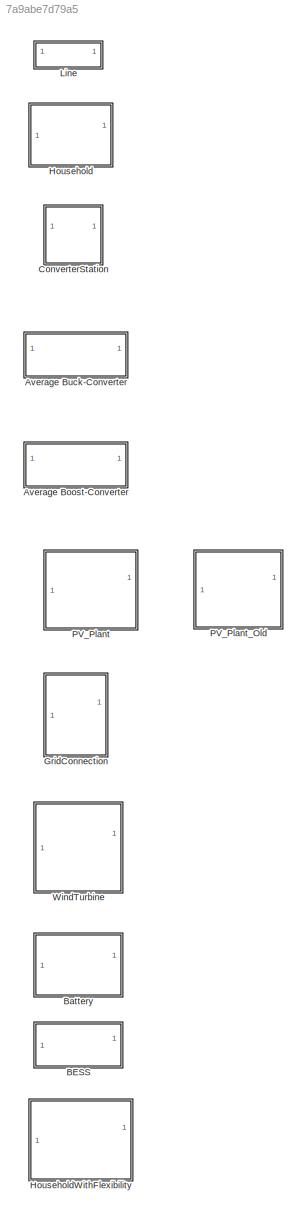
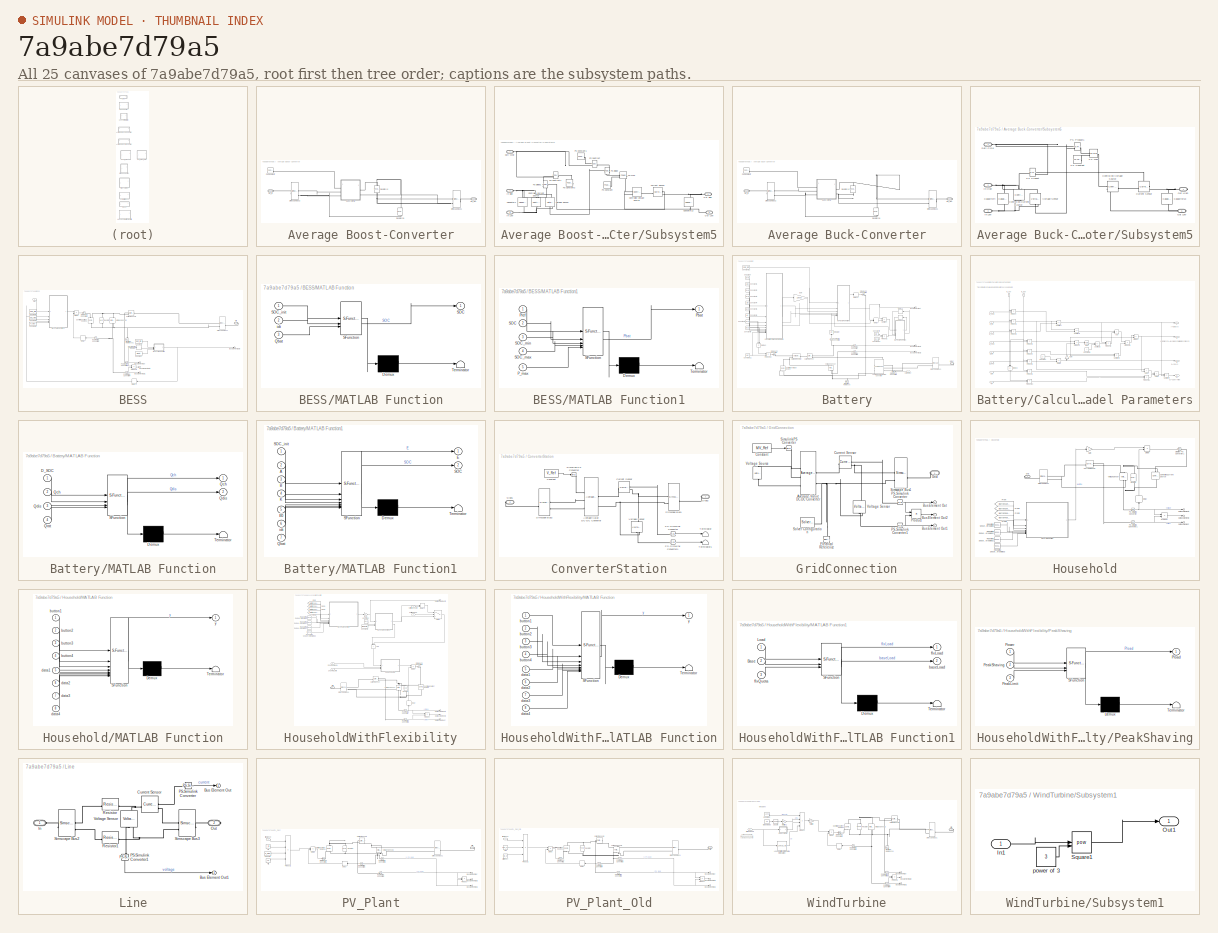
[diagram: thumbnail index - all 25 canvases of the model, root first then tree order]
MODEL slx_7a9abe7d79a5
KIND library
CONFIG AbsTol = auto
CONFIG EnableMultiTasking = off
CONFIG FixedStep = auto
CONFIG MaxStep = auto
CONFIG MinStep = auto
CONFIG RelTol = 1e-3
CONFIG SampleTimeConstraint = Unconstrained
CONFIG SolverName = VariableStepAuto
CONFIG StartTime = 0.0
CONFIG StopTime = 10.0
BLOCK [SubSystem] Average Boost-Converter
BLOCK [PMIOPort] Average Boost-Converter/DC_In
  Side = Left
BLOCK [PMIOPort] Average Boost-Converter/DC_Out
  Port = 2
  Side = Right
BLOCK [Reference] Average Boost-Converter/PS Constant7  REF=fl_lib/Physical Signals/Sources/PS Constant
  SourceBlock = fl_lib/Physical Signals/Sources/PS Constant
  SourceType = PS Constant
BLOCK [Reference] Average Boost-Converter/Resistor12  REF=fl_lib/Electrical/Electrical Elements/Resistor
  NameLocation = left
  SourceBlock = fl_lib/Electrical/Electrical Elements/Resistor
  SourceType = Resistor
BLOCK [Reference] Average Boost-Converter/Resistor39  REF=fl_lib/Electrical/Electrical Elements/Resistor
  NameLocation = right
  SourceBlock = fl_lib/Electrical/Electrical Elements/Resistor
  SourceType = Resistor
BLOCK [SimscapeBus] Average Boost-Converter/Simscape Bus1
  HierarchyStrings = High;Low
BLOCK [SimscapeBus] Average Boost-Converter/Simscape Bus2
  HierarchyStrings = High;Low
  NameLocation = top
BLOCK [SubSystem] Average Boost-Converter/Subsystem5
BLOCK [Reference] Average Boost-Converter/Subsystem5/Capacitor12  REF=fl_lib/Electrical/Electrical Elements/Capacitor
  NameLocation = left
  SourceBlock = fl_lib/Electrical/Electrical Elements/Capacitor
  SourceType = Capacitor
BLOCK [Reference] Average Boost-Converter/Subsystem5/Capacitor4  REF=fl_lib/Electrical/Electrical Elements/Capacitor
  NameLocation = left
  SourceBlock = fl_lib/Electrical/Electrical Elements/Capacitor
  SourceType = Capacitor
BLOCK [Reference] Average Boost-Converter/Subsystem5/Controlled Current Source  REF=fl_lib/Electrical/Electrical Sources/Controlled Current
Source
  NameLocation = left
  SourceBlock = fl_lib/Electrical/Electrical Sources/Controlled Current\nSource
  SourceType = Controlled Current\nSource
BLOCK [Reference] Average Boost-Converter/Subsystem5/Controlled Voltage Source  REF=fl_lib/Electrical/Electrical Sources/Controlled Voltage
Source
  SourceBlock = fl_lib/Electrical/Electrical Sources/Controlled Voltage\nSource
  SourceType = Controlled Voltage\nSource
BLOCK [Reference] Average Boost-Converter/Subsystem5/Current Sensor  REF=fl_lib/Electrical/Electrical Sensors/Current Sensor
  SourceBlock = fl_lib/Electrical/Electrical Sensors/Current Sensor
  SourceType = Current Sensor
BLOCK [PMIOPort] Average Boost-Converter/Subsystem5/Duty Cycle
  Side = Left
BLOCK [PMIOPort] Average Boost-Converter/Subsystem5/In High
  Port = 2
  Side = Left
BLOCK [PMIOPort] Average Boost-Converter/Subsystem5/In Low
  Port = 3
  Side = Left
BLOCK [PMIOPort] Average Boost-Converter/Subsystem5/Out High
  NameLocation = top
  Port = 4
  Side = Right
BLOCK [PMIOPort] Average Boost-Converter/Subsystem5/Out Low
  NameLocation = top
  Port = 5
  Side = Right
BLOCK [Reference] Average Boost-Converter/Subsystem5/PS Constant  REF=fl_lib/Physical Signals/Sources/PS Constant
  SourceBlock = fl_lib/Physical Signals/Sources/PS Constant
  SourceType = PS Constant
BLOCK [Reference] Average Boost-Converter/Subsystem5/PS Constant1  REF=fl_lib/Physical Signals/Sources/PS Constant
  SourceBlock = fl_lib/Physical Signals/Sources/PS Constant
  SourceType = PS Constant
BLOCK [Reference] Average Boost-Converter/Subsystem5/PS Constant2  REF=fl_lib/Physical Signals/Sources/PS Constant
  NameLocation = top
  SourceBlock = fl_lib/Physical Signals/Sources/PS Constant
  SourceType = PS Constant
BLOCK [Reference] Average Boost-Converter/Subsystem5/PS Divide  REF=fl_lib/Physical Signals/Functions/PS Divide
  SourceBlock = fl_lib/Physical Signals/Functions/PS Divide
  SourceType = PS Divide
BLOCK [Reference] Average Boost-Converter/Subsystem5/PS Divide1  REF=fl_lib/Physical Signals/Functions/PS Divide
  NameLocation = top
  SourceBlock = fl_lib/Physical Signals/Functions/PS Divide
  SourceType = PS Divide
BLOCK [Reference] Average Boost-Converter/Subsystem5/PS Max  REF=fl_lib/Physical Signals/Nonlinear Operators/PS Max
  SourceBlock = fl_lib/Physical Signals/Nonlinear Operators/PS Max
  SourceType = PS Max
BLOCK [Reference] Average Boost-Converter/Subsystem5/PS Subtract  REF=fl_lib/Physical Signals/Functions/PS Subtract
  SourceBlock = fl_lib/Physical Signals/Functions/PS Subtract
  SourceType = PS Subtract
BLOCK [Reference] Average Boost-Converter/Subsystem5/PS Subtract1  REF=fl_lib/Physical Signals/Functions/PS Subtract
  NameLocation = top
  SourceBlock = fl_lib/Physical Signals/Functions/PS Subtract
  SourceType = PS Subtract
BLOCK [Reference] Average Boost-Converter/Subsystem5/Voltage Sensor  REF=fl_lib/Electrical/Electrical Sensors/Voltage Sensor
  NameLocation = right
  SourceBlock = fl_lib/Electrical/Electrical Sensors/Voltage Sensor
  SourceType = Voltage Sensor
BLOCK [SubSystem] Average Buck-Converter
BLOCK [PMIOPort] Average Buck-Converter/DC_In
  Side = Left
BLOCK [PMIOPort] Average Buck-Converter/DC_Out
  Port = 2
  Side = Right
BLOCK [Reference] Average Buck-Converter/PS Constant7  REF=fl_lib/Physical Signals/Sources/PS Constant
  SourceBlock = fl_lib/Physical Signals/Sources/PS Constant
  SourceType = PS Constant
BLOCK [Reference] Average Buck-Converter/Resistor12  REF=fl_lib/Electrical/Electrical Elements/Resistor
  NameLocation = left
  SourceBlock = fl_lib/Electrical/Electrical Elements/Resistor
  SourceType = Resistor
BLOCK [Reference] Average Buck-Converter/Resistor39  REF=fl_lib/Electrical/Electrical Elements/Resistor
  NameLocation = right
  SourceBlock = fl_lib/Electrical/Electrical Elements/Resistor
  SourceType = Resistor
BLOCK [SimscapeBus] Average Buck-Converter/Simscape Bus1
  HierarchyStrings = High;Low
BLOCK [SimscapeBus] Average Buck-Converter/Simscape Bus2
  HierarchyStrings = High;Low
  NameLocation = top
BLOCK [SubSystem] Average Buck-Converter/Subsystem5
BLOCK [Reference] Average Buck-Converter/Subsystem5/Capacitor13  REF=fl_lib/Electrical/Electrical Elements/Capacitor
  NameLocation = left
  SourceBlock = fl_lib/Electrical/Electrical Elements/Capacitor
  SourceType = Capacitor
BLOCK [Reference] Average Buck-Converter/Subsystem5/Capacitor4  REF=fl_lib/Electrical/Electrical Elements/Capacitor
  NameLocation = left
  SourceBlock = fl_lib/Electrical/Electrical Elements/Capacitor
  SourceType = Capacitor
BLOCK [Reference] Average Buck-Converter/Subsystem5/Controlled Current Source  REF=fl_lib/Electrical/Electrical Sources/Controlled Current
Source
  NameLocation = left
  SourceBlock = fl_lib/Electrical/Electrical Sources/Controlled Current\nSource
  SourceType = Controlled Current\nSource
BLOCK [Reference] Average Buck-Converter/Subsystem5/Controlled Voltage Source  REF=fl_lib/Electrical/Electrical Sources/Controlled Voltage
Source
  SourceBlock = fl_lib/Electrical/Electrical Sources/Controlled Voltage\nSource
  SourceType = Controlled Voltage\nSource
BLOCK [Reference] Average Buck-Converter/Subsystem5/Current Sensor  REF=fl_lib/Electrical/Electrical Sensors/Current Sensor
  SourceBlock = fl_lib/Electrical/Electrical Sensors/Current Sensor
  SourceType = Current Sensor
BLOCK [PMIOPort] Average Buck-Converter/Subsystem5/Duty Cycle
  Side = Left
BLOCK [PMIOPort] Average Buck-Converter/Subsystem5/In High
  Port = 2
  Side = Left
BLOCK [PMIOPort] Average Buck-Converter/Subsystem5/In Low
  Port = 3
  Side = Left
BLOCK [PMIOPort] Average Buck-Converter/Subsystem5/Out High
  NameLocation = top
  Port = 4
  Side = Right
BLOCK [PMIOPort] Average Buck-Converter/Subsystem5/Out Low
  NameLocation = top
  Port = 5
  Side = Right
BLOCK [Reference] Average Buck-Converter/Subsystem5/PS Constant  REF=fl_lib/Physical Signals/Sources/PS Constant
  SourceBlock = fl_lib/Physical Signals/Sources/PS Constant
  SourceType = PS Constant
BLOCK [Reference] Average Buck-Converter/Subsystem5/PS Max  REF=fl_lib/Physical Signals/Nonlinear Operators/PS Max
  SourceBlock = fl_lib/Physical Signals/Nonlinear Operators/PS Max
  SourceType = PS Max
BLOCK [Reference] Average Buck-Converter/Subsystem5/PS Product  REF=fl_lib/Physical Signals/Functions/PS Product
  NameLocation = top
  SourceBlock = fl_lib/Physical Signals/Functions/PS Product
  SourceType = PS Product
BLOCK [Reference] Average Buck-Converter/Subsystem5/PS Product1  REF=fl_lib/Physical Signals/Functions/PS Product
  SourceBlock = fl_lib/Physical Signals/Functions/PS Product
  SourceType = PS Product
BLOCK [Reference] Average Buck-Converter/Subsystem5/Voltage Sensor  REF=fl_lib/Electrical/Electrical Sensors/Voltage Sensor
  NameLocation = right
  SourceBlock = fl_lib/Electrical/Electrical Sensors/Voltage Sensor
  SourceType = Voltage Sensor
BLOCK [SubSystem] BESS
BLOCK [Outport] BESS/Bus Element Out
BLOCK [Outport] BESS/Bus Element Out1
BLOCK [Outport] BESS/Bus Element Out2
BLOCK [Outport] BESS/Bus Element Out3
BLOCK [Constant] BESS/Constant
  Value = Qbat
BLOCK [Constant] BESS/Constant1
  Value = SOC_init
BLOCK [Constant] BESS/Constant2
  Value = SOC_min
BLOCK [Constant] BESS/Constant3
  Value = SOC_max
BLOCK [Constant] BESS/Constant4
  Value = P_max
BLOCK [Reference] BESS/Controlled Current Source1  REF=fl_lib/Electrical/Electrical Sources/Controlled Current
Source
  NameLocation = left
  SourceBlock = fl_lib/Electrical/Electrical Sources/Controlled Current\nSource
  SourceType = Controlled Current\nSource
BLOCK [Reference] BESS/Current Sensor1  REF=fl_lib/Electrical/Electrical Sensors/Current Sensor
  NameLocation = top
  SourceBlock = fl_lib/Electrical/Electrical Sensors/Current Sensor
  SourceType = Current Sensor
BLOCK [Delay] BESS/Delay
  DelayLength = 1
  InitialCondition = V_Bat
  InputPortMap = u0
  NameLocation = top
BLOCK [Delay] BESS/Delay1
  DelayLength = 1
  InitialCondition = SOC_init
  InputPortMap = u0
  NameLocation = top
BLOCK [DiscreteIntegrator] BESS/Discrete-Time Integrator
  ICPrevOutput = DiscIntNeverNeededParam
  ICPrevScaledInput = DiscIntNeverNeededParam
  InitialConditionSetting = Auto
  SampleTime = -1
BLOCK [Product] BESS/Divide
  Inputs = */
BLOCK [Reference] BESS/Electrical Reference1  REF=fl_lib/Electrical/Electrical Elements/Electrical Reference
  NameLocation = right
  SourceBlock = fl_lib/Electrical/Electrical Elements/Electrical Reference
  SourceType = Electrical Reference
BLOCK [PMIOPort] BESS/Grid
  Side = Right
BLOCK [SubSystem] BESS/MATLAB Function
  ErrorFcn = Stateflow.Translate.translate
  LibrarySourceBlock = simulink/User-Defined\nFunctions/MATLAB Function
  PermitHierarchicalResolution = ExplicitOnly
  SFBlockType = MATLAB Function
  TreatAsAtomicUnit = on
BLOCK [Demux] BESS/MATLAB Function/ Demux 
  Outputs = 1
BLOCK [S-Function] BESS/MATLAB Function/ SFunction 
  EnableBusSupport = off
  FunctionName = sf_sfun
  PortCounts = [3 2]
  SFcnIsStateOwnerBlock = off
  SFunctionDeploymentMode = off
  Tag = Stateflow S-Function 1
BLOCK [Terminator] BESS/MATLAB Function/ Terminator 
BLOCK [Inport] BESS/MATLAB Function/Qbat
  Port = 3
BLOCK [Outport] BESS/MATLAB Function/SOC
BLOCK [Inport] BESS/MATLAB Function/SOC_init
BLOCK [Inport] BESS/MATLAB Function/idt
  Port = 2
BLOCK [SubSystem] BESS/MATLAB Function1
  ErrorFcn = Stateflow.Translate.translate
  LibrarySourceBlock = simulink/User-Defined\nFunctions/MATLAB Function
  PermitHierarchicalResolution = ExplicitOnly
  SFBlockType = MATLAB Function
  TreatAsAtomicUnit = on
BLOCK [Demux] BESS/MATLAB Function1/ Demux 
  Outputs = 1
BLOCK [S-Function] BESS/MATLAB Function1/ SFunction 
  EnableBusSupport = off
  FunctionName = sf_sfun
  PortCounts = [5 2]
  SFcnIsStateOwnerBlock = off
  SFunctionDeploymentMode = off
  Tag = Stateflow S-Function 3
BLOCK [Terminator] BESS/MATLAB Function1/ Terminator 
BLOCK [Inport] BESS/MATLAB Function1/P_max
  Port = 5
BLOCK [Outport] BESS/MATLAB Function1/Pbat
BLOCK [Inport] BESS/MATLAB Function1/Pref
BLOCK [Inport] BESS/MATLAB Function1/SOC
  Port = 2
BLOCK [Inport] BESS/MATLAB Function1/SOC_max
  Port = 4
BLOCK [Inport] BESS/MATLAB Function1/SOC_min
  Port = 3
BLOCK [Reference] BESS/PS-Simulink Converter2  REF=nesl_utility/PS-Simulink
Converter
  NameLocation = top
  SourceBlock = nesl_utility/PS-Simulink\nConverter
  SourceType = PS-Simulink\nConverter
BLOCK [Reference] BESS/PS-Simulink Converter3  REF=nesl_utility/PS-Simulink
Converter
  SourceBlock = nesl_utility/PS-Simulink\nConverter
  SourceType = PS-Simulink\nConverter
BLOCK [Reference] BESS/PS-Simulink Converter4  REF=nesl_utility/PS-Simulink
Converter
  SourceBlock = nesl_utility/PS-Simulink\nConverter
  SourceType = PS-Simulink\nConverter
BLOCK [Inport] BESS/Pref
BLOCK [Product] BESS/Product1
BLOCK [Reference] BESS/Resistor  REF=fl_lib/Electrical/Electrical Elements/Resistor
  NameLocation = left
  SourceBlock = fl_lib/Electrical/Electrical Elements/Resistor
  SourceType = Resistor
BLOCK [SimscapeBus] BESS/Simscape Bus1
  HierarchyStrings = High;Low
BLOCK [Reference] BESS/Simulink-PS Converter1  REF=nesl_utility/Simulink-PS
Converter
  SourceBlock = nesl_utility/Simulink-PS\nConverter
  SourceType = Simulink-PS\nConverter
BLOCK [Reference] BESS/Voltage Sensor1  REF=fl_lib/Electrical/Electrical Sensors/Voltage Sensor
  NameLocation = right
  SourceBlock = fl_lib/Electrical/Electrical Sensors/Voltage Sensor
  SourceType = Voltage Sensor
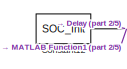
[diagram: Battery - part 1/5, top left region]
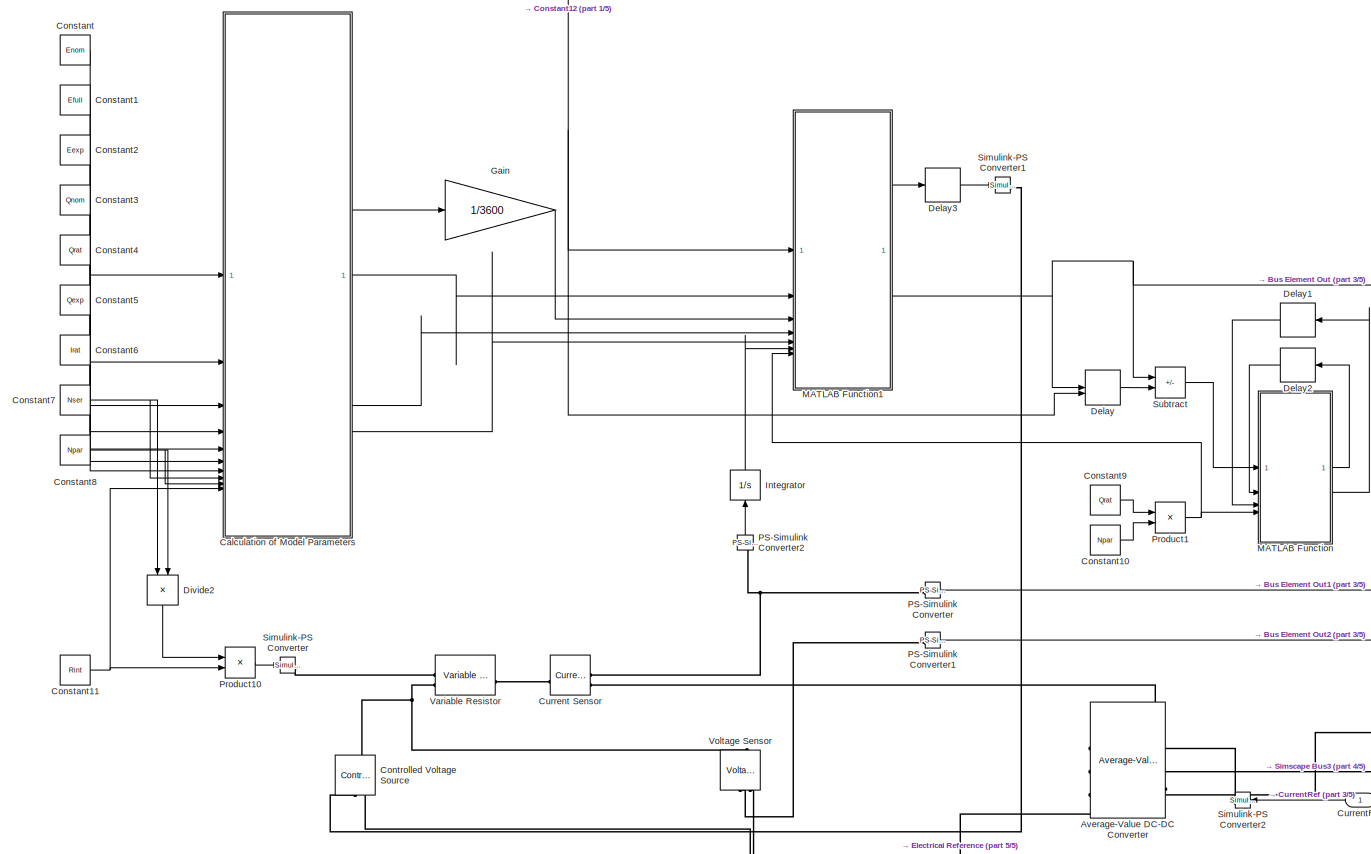
[diagram: Battery - part 2/5, most of the canvas]
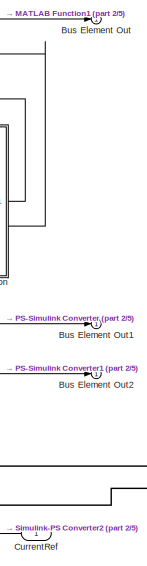
[diagram: Battery - part 3/5, middle right region]
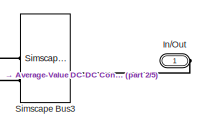
[diagram: Battery - part 4/5, bottom right region]
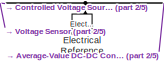
[diagram: Battery - part 5/5, bottom center region]
BLOCK [SubSystem] Battery
  Commented = on
BLOCK [Reference] Battery/Average-Value DC-DC Converter  REF=ee_lib/Semiconductors &
Converters/Converters/Average-Value DC-DC
Converter
  NameLocation = top
  SourceBlock = ee_lib/Semiconductors &\nConverters/Converters/Average-Value DC-DC\nConverter
  SourceType = Average-Value DC-DC\nConverter
BLOCK [Outport] Battery/Bus Element Out
BLOCK [Outport] Battery/Bus Element Out1
BLOCK [Outport] Battery/Bus Element Out2
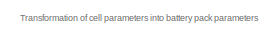
[diagram: Battery/Calculation of Model Parameters - part 1/2, top left region]
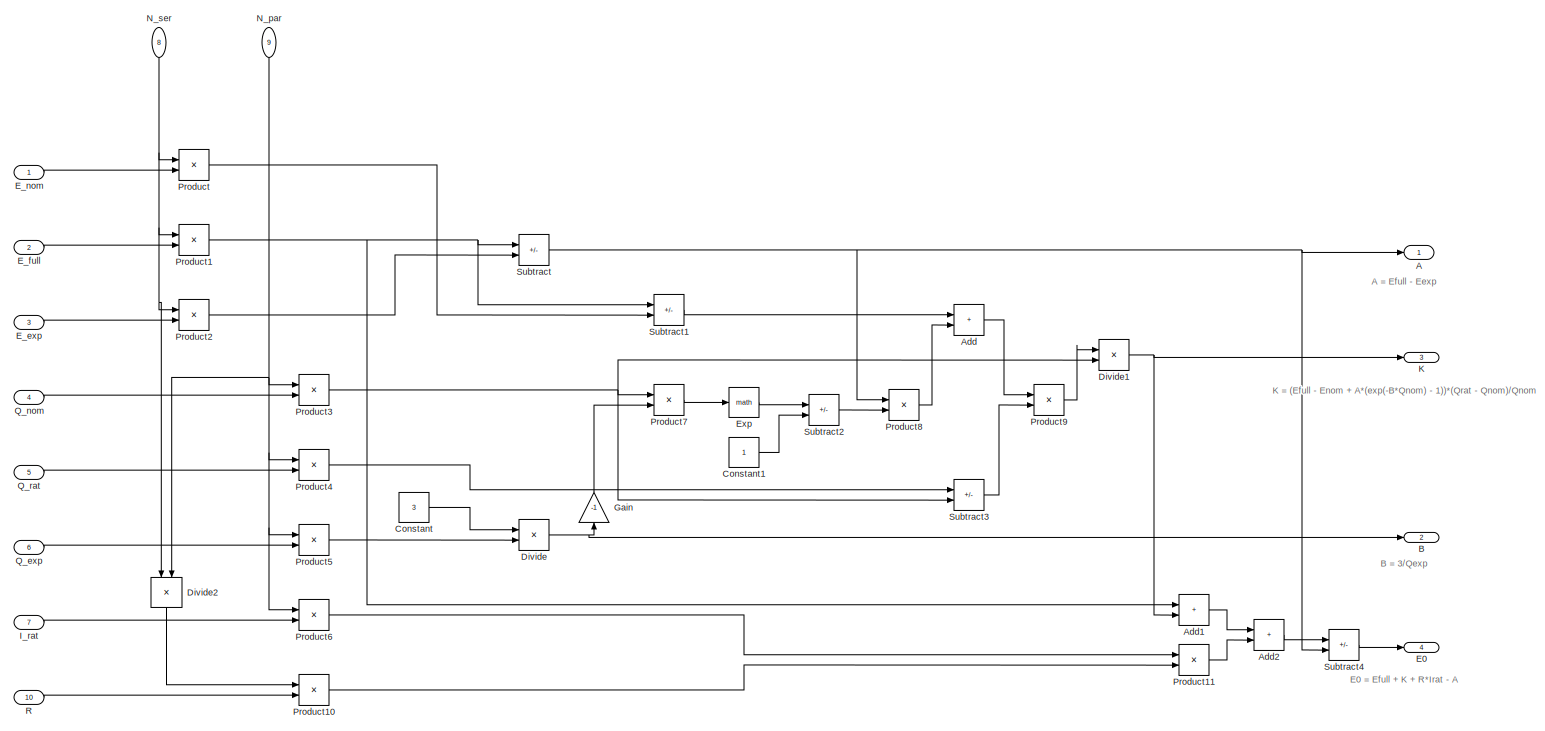
[diagram: Battery/Calculation of Model Parameters - part 2/2, most of the canvas]
BLOCK [SubSystem] Battery/Calculation of Model Parameters
BLOCK [Outport] Battery/Calculation of Model Parameters/A
BLOCK [Sum] Battery/Calculation of Model Parameters/Add
  IconShape = rectangular
BLOCK [Sum] Battery/Calculation of Model Parameters/Add1
  IconShape = rectangular
BLOCK [Sum] Battery/Calculation of Model Parameters/Add2
  IconShape = rectangular
BLOCK [Outport] Battery/Calculation of Model Parameters/B
  Port = 2
BLOCK [Constant] Battery/Calculation of Model Parameters/Constant
  Value = 3
BLOCK [Constant] Battery/Calculation of Model Parameters/Constant1
BLOCK [Product] Battery/Calculation of Model Parameters/Divide
  Inputs = */
BLOCK [Product] Battery/Calculation of Model Parameters/Divide1
  Inputs = */
BLOCK [Product] Battery/Calculation of Model Parameters/Divide2
  Inputs = */
  NameLocation = left
BLOCK [Outport] Battery/Calculation of Model Parameters/E0
  Port = 4
BLOCK [Inport] Battery/Calculation of Model Parameters/E_exp
  Port = 3
BLOCK [Inport] Battery/Calculation of Model Parameters/E_full
  Port = 2
BLOCK [Inport] Battery/Calculation of Model Parameters/E_nom
BLOCK [Math] Battery/Calculation of Model Parameters/Exp
BLOCK [Gain] Battery/Calculation of Model Parameters/Gain
  Gain = -1
  NameLocation = right
BLOCK [Inport] Battery/Calculation of Model Parameters/I_rat
  Port = 7
BLOCK [Outport] Battery/Calculation of Model Parameters/K
  Port = 3
BLOCK [Inport] Battery/Calculation of Model Parameters/N_par
  NameLocation = left
  Port = 9
BLOCK [Inport] Battery/Calculation of Model Parameters/N_ser
  NameLocation = left
  Port = 8
BLOCK [Product] Battery/Calculation of Model Parameters/Product
BLOCK [Product] Battery/Calculation of Model Parameters/Product1
BLOCK [Product] Battery/Calculation of Model Parameters/Product10
BLOCK [Product] Battery/Calculation of Model Parameters/Product11
BLOCK [Product] Battery/Calculation of Model Parameters/Product2
BLOCK [Product] Battery/Calculation of Model Parameters/Product3
BLOCK [Product] Battery/Calculation of Model Parameters/Product4
BLOCK [Product] Battery/Calculation of Model Parameters/Product5
BLOCK [Product] Battery/Calculation of Model Parameters/Product6
BLOCK [Product] Battery/Calculation of Model Parameters/Product7
BLOCK [Product] Battery/Calculation of Model Parameters/Product8
BLOCK [Product] Battery/Calculation of Model Parameters/Product9
BLOCK [Inport] Battery/Calculation of Model Parameters/Q_exp
  Port = 6
BLOCK [Inport] Battery/Calculation of Model Parameters/Q_nom
  Port = 4
BLOCK [Inport] Battery/Calculation of Model Parameters/Q_rat
  Port = 5
BLOCK [Inport] Battery/Calculation of Model Parameters/R
  Port = 10
BLOCK [Sum] Battery/Calculation of Model Parameters/Subtract
  IconShape = rectangular
  Inputs = +-
BLOCK [Sum] Battery/Calculation of Model Parameters/Subtract1
  IconShape = rectangular
  Inputs = +-
BLOCK [Sum] Battery/Calculation of Model Parameters/Subtract2
  IconShape = rectangular
  Inputs = +-
BLOCK [Sum] Battery/Calculation of Model Parameters/Subtract3
  IconShape = rectangular
  Inputs = +-
BLOCK [Sum] Battery/Calculation of Model Parameters/Subtract4
  IconShape = rectangular
  Inputs = +-
BLOCK [Constant] Battery/Constant
  Value = Enom
BLOCK [Constant] Battery/Constant1
  Value = Efull
BLOCK [Constant] Battery/Constant10
  Value = Npar
BLOCK [Constant] Battery/Constant11
  Value = Rint
BLOCK [Constant] Battery/Constant12
  Value = SOC_Init
BLOCK [Constant] Battery/Constant2
  Value = Eexp
BLOCK [Constant] Battery/Constant3
  Value = Qnom
BLOCK [Constant] Battery/Constant4
  Value = Qrat
BLOCK [Constant] Battery/Constant5
  Value = Qexp
BLOCK [Constant] Battery/Constant6
  Value = Irat
BLOCK [Constant] Battery/Constant7
  Value = Nser
BLOCK [Constant] Battery/Constant8
  Value = Npar
BLOCK [Constant] Battery/Constant9
  Value = Qrat
BLOCK [Reference] Battery/Controlled Voltage Source  REF=fl_lib/Electrical/Electrical Sources/Controlled Voltage
Source
  NameLocation = right
  SourceBlock = fl_lib/Electrical/Electrical Sources/Controlled Voltage\nSource
  SourceType = Controlled Voltage\nSource
BLOCK [Reference] Battery/Current Sensor  REF=fl_lib/Electrical/Electrical Sensors/Current Sensor
  SourceBlock = fl_lib/Electrical/Electrical Sensors/Current Sensor
  SourceType = Current Sensor
BLOCK [Inport] Battery/CurrentRef
  NameLocation = top
BLOCK [Delay] Battery/Delay
  DelayLength = 1
  InitialConditionSource = Input port
  InputPortMap = u0,p4
BLOCK [Delay] Battery/Delay1
  DelayLength = 1
  InputPortMap = u0
  NameLocation = top
BLOCK [Delay] Battery/Delay2
  DelayLength = 1
  InputPortMap = u0
  NameLocation = top
BLOCK [Delay] Battery/Delay3
  DelayLength = 1
  InitialCondition = Enom*Nser
  InputPortMap = u0
BLOCK [Product] Battery/Divide2
  Inputs = */
  NameLocation = left
BLOCK [Reference] Battery/Electrical Reference  REF=fl_lib/Electrical/Electrical Elements/Electrical Reference
  NameLocation = right
  SourceBlock = fl_lib/Electrical/Electrical Elements/Electrical Reference
  SourceType = Electrical Reference
BLOCK [Gain] Battery/Gain
  Gain = 1/3600
BLOCK [PMIOPort] Battery/In//Out
  NameLocation = top
  Side = Right
BLOCK [Integrator] Battery/Integrator
  NameLocation = right
BLOCK [SubSystem] Battery/MATLAB Function
  ErrorFcn = Stateflow.Translate.translate
  PermitHierarchicalResolution = ExplicitOnly
  SFBlockType = MATLAB Function
  TreatAsAtomicUnit = on
BLOCK [Demux] Battery/MATLAB Function/ Demux 
  Outputs = 1
BLOCK [S-Function] Battery/MATLAB Function/ SFunction 
  EnableBusSupport = off
  FunctionName = sf_sfun
  PortCounts = [4 3]
  SFcnIsStateOwnerBlock = off
  SFunctionDeploymentMode = off
  Tag = Stateflow S-Function 4
BLOCK [Terminator] Battery/MATLAB Function/ Terminator 
BLOCK [Inport] Battery/MATLAB Function/D_SOC
BLOCK [Outport] Battery/MATLAB Function/Qch
BLOCK [Inport] Battery/MATLAB Function/Qch 
  Port = 2
BLOCK [Outport] Battery/MATLAB Function/Qdis
  Port = 2
BLOCK [Inport] Battery/MATLAB Function/Qdis 
  Port = 3
BLOCK [Inport] Battery/MATLAB Function/Qrat
  Port = 4
BLOCK [SubSystem] Battery/MATLAB Function1
  ErrorFcn = Stateflow.Translate.translate
  LibrarySourceBlock = simulink/User-Defined\nFunctions/MATLAB Function
  PermitHierarchicalResolution = ExplicitOnly
  SFBlockType = MATLAB Function
  TreatAsAtomicUnit = on
BLOCK [Demux] Battery/MATLAB Function1/ Demux 
  Outputs = 1
BLOCK [S-Function] Battery/MATLAB Function1/ SFunction 
  EnableBusSupport = off
  FunctionName = sf_sfun
  PortCounts = [7 3]
  SFcnIsStateOwnerBlock = off
  SFunctionDeploymentMode = off
  Tag = Stateflow S-Function 2
BLOCK [Terminator] Battery/MATLAB Function1/ Terminator 
BLOCK [Inport] Battery/MATLAB Function1/A
  Port = 2
BLOCK [Inport] Battery/MATLAB Function1/B
  Port = 3
BLOCK [Outport] Battery/MATLAB Function1/E
BLOCK [Inport] Battery/MATLAB Function1/E0
  Port = 5
BLOCK [Inport] Battery/MATLAB Function1/K
  Port = 4
BLOCK [Inport] Battery/MATLAB Function1/Qbat
  Port = 7
BLOCK [Outport] Battery/MATLAB Function1/SOC
  Port = 2
BLOCK [Inport] Battery/MATLAB Function1/SOC_init
BLOCK [Inport] Battery/MATLAB Function1/idt
  Port = 6
BLOCK [Reference] Battery/PS-Simulink Converter  REF=nesl_utility/PS-Simulink
Converter
  SourceBlock = nesl_utility/PS-Simulink\nConverter
  SourceType = PS-Simulink\nConverter
BLOCK [Reference] Battery/PS-Simulink Converter1  REF=nesl_utility/PS-Simulink
Converter
  SourceBlock = nesl_utility/PS-Simulink\nConverter
  SourceType = PS-Simulink\nConverter
BLOCK [Reference] Battery/PS-Simulink Converter2  REF=nesl_utility/PS-Simulink
Converter
  NameLocation = right
  SourceBlock = nesl_utility/PS-Simulink\nConverter
  SourceType = PS-Simulink\nConverter
BLOCK [Product] Battery/Product1
BLOCK [Product] Battery/Product10
BLOCK [SimscapeBus] Battery/Simscape Bus3
  HierarchyStrings = Low;High
BLOCK [Reference] Battery/Simulink-PS Converter  REF=nesl_utility/Simulink-PS
Converter
  SourceBlock = nesl_utility/Simulink-PS\nConverter
  SourceType = Simulink-PS\nConverter
BLOCK [Reference] Battery/Simulink-PS Converter1  REF=nesl_utility/Simulink-PS
Converter
  SourceBlock = nesl_utility/Simulink-PS\nConverter
  SourceType = Simulink-PS\nConverter
BLOCK [Reference] Battery/Simulink-PS Converter2  REF=nesl_utility/Simulink-PS
Converter
  NameLocation = top
  SourceBlock = nesl_utility/Simulink-PS\nConverter
  SourceType = Simulink-PS\nConverter
BLOCK [Sum] Battery/Subtract
  IconShape = rectangular
  Inputs = +-
BLOCK [Reference] Battery/Variable Resistor  REF=fl_lib/Electrical/Electrical Elements/Variable Resistor
  SourceBlock = fl_lib/Electrical/Electrical Elements/Variable Resistor
  SourceType = Variable Resistor
BLOCK [Reference] Battery/Voltage Sensor  REF=fl_lib/Electrical/Electrical Sensors/Voltage Sensor
  NameLocation = right
  SourceBlock = fl_lib/Electrical/Electrical Sensors/Voltage Sensor
  SourceType = Voltage Sensor
BLOCK [SubSystem] ConverterStation
BLOCK [Reference] ConverterStation/Average-Value DC-DC Converter  REF=ee_lib/Semiconductors &
Converters/Converters/Average-Value DC-DC
Converter
  SourceBlock = ee_lib/Semiconductors &\nConverters/Converters/Average-Value DC-DC\nConverter
  SourceType = Average-Value DC-DC\nConverter
BLOCK [Constant] ConverterStation/Constant
  Value = V_Ref
BLOCK [Reference] ConverterStation/Current Sensor  REF=fl_lib/Electrical/Electrical Sensors/Current Sensor
  SourceBlock = fl_lib/Electrical/Electrical Sensors/Current Sensor
  SourceType = Current Sensor
BLOCK [Reference] ConverterStation/PS-Simulink Converter  REF=nesl_utility/PS-Simulink
Converter
  SourceBlock = nesl_utility/PS-Simulink\nConverter
  SourceType = PS-Simulink\nConverter
BLOCK [Reference] ConverterStation/PS-Simulink Converter1  REF=nesl_utility/PS-Simulink
Converter
  SourceBlock = nesl_utility/PS-Simulink\nConverter
  SourceType = PS-Simulink\nConverter
BLOCK [PMIOPort] ConverterStation/Side1
  Port = 2
  Side = Right
BLOCK [PMIOPort] ConverterStation/Side2
  NameLocation = top
  Side = Left
BLOCK [SimscapeBus] ConverterStation/Simscape Bus1
  HierarchyStrings = High;Low
BLOCK [SimscapeBus] ConverterStation/Simscape Bus2
  HierarchyStrings = High;Low
  NameLocation = top
BLOCK [Reference] ConverterStation/Simulink-PS Converter  REF=nesl_utility/Simulink-PS
Converter
  SourceBlock = nesl_utility/Simulink-PS\nConverter
  SourceType = Simulink-PS\nConverter
BLOCK [Terminator] ConverterStation/Terminator
BLOCK [Terminator] ConverterStation/Terminator1
BLOCK [Reference] ConverterStation/Voltage Sensor  REF=fl_lib/Electrical/Electrical Sensors/Voltage Sensor
  NameLocation = right
  SourceBlock = fl_lib/Electrical/Electrical Sensors/Voltage Sensor
  SourceType = Voltage Sensor
BLOCK [SubSystem] GridConnection
BLOCK [Reference] GridConnection/Average-Value DC-DC Converter  REF=ee_lib/Semiconductors &
Converters/Converters/Average-Value DC-DC
Converter
  SourceBlock = ee_lib/Semiconductors &\nConverters/Converters/Average-Value DC-DC\nConverter
  SourceType = Average-Value DC-DC\nConverter
BLOCK [Outport] GridConnection/Bus Element Out
BLOCK [Outport] GridConnection/Bus Element Out1
BLOCK [Outport] GridConnection/Bus Element Out2
BLOCK [Constant] GridConnection/Constant
  Value = MV_Ref
BLOCK [Reference] GridConnection/Current Sensor  REF=fl_lib/Electrical/Electrical Sensors/Current Sensor
  SourceBlock = fl_lib/Electrical/Electrical Sensors/Current Sensor
  SourceType = Current Sensor
BLOCK [Reference] GridConnection/Electrical Reference  REF=fl_lib/Electrical/Electrical Elements/Electrical Reference
  NameLocation = right
  SourceBlock = fl_lib/Electrical/Electrical Elements/Electrical Reference
  SourceType = Electrical Reference
BLOCK [PMIOPort] GridConnection/Grid
  NameLocation = top
  Side = Left
BLOCK [Reference] GridConnection/PS-Simulink Converter  REF=nesl_utility/PS-Simulink
Converter
  SourceBlock = nesl_utility/PS-Simulink\nConverter
  SourceType = PS-Simulink\nConverter
BLOCK [Reference] GridConnection/PS-Simulink Converter1  REF=nesl_utility/PS-Simulink
Converter
  SourceBlock = nesl_utility/PS-Simulink\nConverter
  SourceType = PS-Simulink\nConverter
BLOCK [Product] GridConnection/Product
BLOCK [SimscapeBus] GridConnection/Simscape Bus1
  HierarchyStrings = High;Low
BLOCK [Reference] GridConnection/Simulink-PS Converter  REF=nesl_utility/Simulink-PS
Converter
  SourceBlock = nesl_utility/Simulink-PS\nConverter
  SourceType = Simulink-PS\nConverter
BLOCK [Reference] GridConnection/Solver Configuration  REF=nesl_utility/Solver
Configuration
  SourceBlock = nesl_utility/Solver\nConfiguration
  SourceType = Solver\nConfiguration
BLOCK [Reference] GridConnection/Voltage Sensor  REF=fl_lib/Electrical/Electrical Sensors/Voltage Sensor
  NameLocation = right
  SourceBlock = fl_lib/Electrical/Electrical Sensors/Voltage Sensor
  SourceType = Voltage Sensor
BLOCK [Reference] GridConnection/Voltage Source  REF=ee_lib/Sources/Voltage Source
  NameLocation = right
  SourceBlock = ee_lib/Sources/Voltage Source
  SourceType = Voltage Source
BLOCK [SubSystem] Household
BLOCK [Reference] Household/Controlled Current Source  REF=fl_lib/Electrical/Electrical Sources/Controlled Current
Source
  NameLocation = left
  SourceBlock = fl_lib/Electrical/Electrical Sources/Controlled Current\nSource
  SourceType = Controlled Current\nSource
BLOCK [Reference] Household/Current Sensor  REF=fl_lib/Electrical/Electrical Sensors/Current Sensor
  SourceBlock = fl_lib/Electrical/Electrical Sensors/Current Sensor
  SourceType = Current Sensor
BLOCK [Delay] Household/Delay
  DelayLength = 1
  InitialCondition = VnomLoad
  InputPortMap = u0
  NameLocation = right
BLOCK [Product] Household/Divide
  Inputs = */
BLOCK [From] Household/From
  GotoTag = Button1selected
  TagVisibility = global
BLOCK [From] Household/From1
  GotoTag = Button2selected
  TagVisibility = global
BLOCK [From] Household/From2
  GotoTag = Button3selected
  TagVisibility = global
BLOCK [From] Household/From3
  GotoTag = Button4selected
  TagVisibility = global
BLOCK [Gain] Household/Gain
  Gain = k
BLOCK [PMIOPort] Household/Grid
  Side = Right
BLOCK [SubSystem] Household/MATLAB Function
  ErrorFcn = Stateflow.Translate.translate
  LibrarySourceBlock = simulink/User-Defined\nFunctions/MATLAB Function
  PermitHierarchicalResolution = ExplicitOnly
  SFBlockType = MATLAB Function
  TreatAsAtomicUnit = on
BLOCK [Demux] Household/MATLAB Function/ Demux 
  Outputs = 1
BLOCK [S-Function] Household/MATLAB Function/ SFunction 
  EnableBusSupport = on
  FunctionName = sf_sfun
  PortCounts = [8 2]
  SFcnIsStateOwnerBlock = off
  SFunctionDeploymentMode = off
  Tag = Stateflow S-Function 15
BLOCK [Terminator] Household/MATLAB Function/ Terminator 
BLOCK [Inport] Household/MATLAB Function/button1
BLOCK [Inport] Household/MATLAB Function/button2
  Port = 2
BLOCK [Inport] Household/MATLAB Function/button3
  Port = 3
BLOCK [Inport] Household/MATLAB Function/button4
  Port = 4
BLOCK [Inport] Household/MATLAB Function/data1
  Port = 5
BLOCK [Inport] Household/MATLAB Function/data2
  Port = 6
BLOCK [Inport] Household/MATLAB Function/data3
  Port = 7
BLOCK [Inport] Household/MATLAB Function/data4
  Port = 8
BLOCK [Outport] Household/MATLAB Function/y
BLOCK [Outport] Household/Out Bus Element
BLOCK [Outport] Household/Out Bus Element1
BLOCK [Outport] Household/Out Bus Element2
BLOCK [Reference] Household/PS-Simulink Converter  REF=nesl_utility/PS-Simulink
Converter
  SourceBlock = nesl_utility/PS-Simulink\nConverter
  SourceType = PS-Simulink\nConverter
BLOCK [Reference] Household/PS-Simulink Converter1  REF=nesl_utility/PS-Simulink
Converter
  SourceBlock = nesl_utility/PS-Simulink\nConverter
  SourceType = PS-Simulink\nConverter
BLOCK [Product] Household/Product
BLOCK [Reference] Household/Repeating Sequence Interpolated  REF=simulink/Sources/Repeating
Sequence
Interpolated
  SourceBlock = simulink/Sources/Repeating\nSequence\nInterpolated
  SourceType = Repeating Sequence Interpolated
BLOCK [Reference] Household/Repeating Sequence Interpolated1  REF=simulink/Sources/Repeating
Sequence
Interpolated
  SourceBlock = simulink/Sources/Repeating\nSequence\nInterpolated
  SourceType = Repeating Sequence Interpolated
BLOCK [Reference] Household/Repeating Sequence Interpolated2  REF=simulink/Sources/Repeating
Sequence
Interpolated
  SourceBlock = simulink/Sources/Repeating\nSequence\nInterpolated
  SourceType = Repeating Sequence Interpolated
BLOCK [Reference] Household/Repeating Sequence Interpolated3  REF=simulink/Sources/Repeating
Sequence
Interpolated
  SourceBlock = simulink/Sources/Repeating\nSequence\nInterpolated
  SourceType = Repeating Sequence Interpolated
BLOCK [Reference] Household/Resistor  REF=fl_lib/Electrical/Electrical Elements/Resistor
  NameLocation = left
  SourceBlock = fl_lib/Electrical/Electrical Elements/Resistor
  SourceType = Resistor
BLOCK [SimscapeBus] Household/Simscape Bus1
  HierarchyStrings = High;Low
  NameLocation = top
BLOCK [Reference] Household/Simulink-PS Converter1  REF=nesl_utility/Simulink-PS
Converter
  SourceBlock = nesl_utility/Simulink-PS\nConverter
  SourceType = Simulink-PS\nConverter
BLOCK [Reference] Household/Voltage Sensor  REF=fl_lib/Electrical/Electrical Sensors/Voltage Sensor
  NameLocation = right
  SourceBlock = fl_lib/Electrical/Electrical Sensors/Voltage Sensor
  SourceType = Voltage Sensor
BLOCK [SubSystem] HouseholdWithFlexibility
BLOCK [Sum] HouseholdWithFlexibility/Add
  IconShape = rectangular
  NameLocation = left
BLOCK [Constant] HouseholdWithFlexibility/Constant
  Value = Base
BLOCK [Constant] HouseholdWithFlexibility/Constant1
  Value = flxQuota
BLOCK [Reference] HouseholdWithFlexibility/Controlled Current Source  REF=fl_lib/Electrical/Electrical Sources/Controlled Current
Source
  NameLocation = left
  SourceBlock = fl_lib/Electrical/Electrical Sources/Controlled Current\nSource
  SourceType = Controlled Current\nSource
BLOCK [Reference] HouseholdWithFlexibility/Current Sensor  REF=fl_lib/Electrical/Electrical Sensors/Current Sensor
  SourceBlock = fl_lib/Electrical/Electrical Sensors/Current Sensor
  SourceType = Current Sensor
BLOCK [Delay] HouseholdWithFlexibility/Delay
  DelayLength = 1
  InitialCondition = Vload
  InputPortMap = u0
  NameLocation = right
BLOCK [Delay] HouseholdWithFlexibility/Delay1
  DelayLength = Shift
  DelayLengthSource = Input port
  DelayLengthUpperLimit = 1000
  InputPortMap = u0,p1
BLOCK [Product] HouseholdWithFlexibility/Divide
  Inputs = */
BLOCK [From] HouseholdWithFlexibility/From
  GotoTag = Button1selected
  TagVisibility = global
BLOCK [From] HouseholdWithFlexibility/From1
  GotoTag = Button2selected
  TagVisibility = global
BLOCK [From] HouseholdWithFlexibility/From2
  GotoTag = Button3selected
  TagVisibility = global
BLOCK [From] HouseholdWithFlexibility/From3
  GotoTag = Button4selected
  TagVisibility = global
BLOCK [Gain] HouseholdWithFlexibility/Gain
  Gain = k
BLOCK [PMIOPort] HouseholdWithFlexibility/Grid
  Side = Right
BLOCK [SubSystem] HouseholdWithFlexibility/MATLAB Function
  ErrorFcn = Stateflow.Translate.translate
  LibrarySourceBlock = simulink/User-Defined\nFunctions/MATLAB Function
  PermitHierarchicalResolution = ExplicitOnly
  SFBlockType = MATLAB Function
  TreatAsAtomicUnit = on
BLOCK [Demux] HouseholdWithFlexibility/MATLAB Function/ Demux 
  Outputs = 1
BLOCK [S-Function] HouseholdWithFlexibility/MATLAB Function/ SFunction 
  EnableBusSupport = off
  FunctionName = sf_sfun
  PortCounts = [8 2]
  SFcnIsStateOwnerBlock = off
  SFunctionDeploymentMode = off
  Tag = Stateflow S-Function 5
BLOCK [Terminator] HouseholdWithFlexibility/MATLAB Function/ Terminator 
BLOCK [Inport] HouseholdWithFlexibility/MATLAB Function/button1
BLOCK [Inport] HouseholdWithFlexibility/MATLAB Function/button2
  Port = 2
BLOCK [Inport] HouseholdWithFlexibility/MATLAB Function/button3
  Port = 3
BLOCK [Inport] HouseholdWithFlexibility/MATLAB Function/button4
  Port = 4
BLOCK [Inport] HouseholdWithFlexibility/MATLAB Function/data1
  Port = 5
BLOCK [Inport] HouseholdWithFlexibility/MATLAB Function/data2
  Port = 6
BLOCK [Inport] HouseholdWithFlexibility/MATLAB Function/data3
  Port = 7
BLOCK [Inport] HouseholdWithFlexibility/MATLAB Function/data4
  Port = 8
BLOCK [Outport] HouseholdWithFlexibility/MATLAB Function/y
BLOCK [SubSystem] HouseholdWithFlexibility/MATLAB Function1
  ErrorFcn = Stateflow.Translate.translate
  LibrarySourceBlock = simulink/User-Defined\nFunctions/MATLAB Function
  PermitHierarchicalResolution = ExplicitOnly
  SFBlockType = MATLAB Function
  TreatAsAtomicUnit = on
BLOCK [Demux] HouseholdWithFlexibility/MATLAB Function1/ Demux 
  Outputs = 1
BLOCK [S-Function] HouseholdWithFlexibility/MATLAB Function1/ SFunction 
  EnableBusSupport = off
  FunctionName = sf_sfun
  PortCounts = [3 3]
  SFcnIsStateOwnerBlock = off
  SFunctionDeploymentMode = off
  Tag = Stateflow S-Function 7
BLOCK [Terminator] HouseholdWithFlexibility/MATLAB Function1/ Terminator 
BLOCK [Inport] HouseholdWithFlexibility/MATLAB Function1/Base
  Port = 2
BLOCK [Inport] HouseholdWithFlexibility/MATLAB Function1/Load
BLOCK [Outport] HouseholdWithFlexibility/MATLAB Function1/baseLoad
  Port = 2
BLOCK [Outport] HouseholdWithFlexibility/MATLAB Function1/flxLoad
BLOCK [Inport] HouseholdWithFlexibility/MATLAB Function1/flxQuota
  Port = 3
BLOCK [Outport] HouseholdWithFlexibility/Out Bus Element
BLOCK [Outport] HouseholdWithFlexibility/Out Bus Element1
BLOCK [Outport] HouseholdWithFlexibility/Out Bus Element2
BLOCK [Outport] HouseholdWithFlexibility/Out Bus Element3
BLOCK [Reference] HouseholdWithFlexibility/PS-Simulink Converter  REF=nesl_utility/PS-Simulink
Converter
  SourceBlock = nesl_utility/PS-Simulink\nConverter
  SourceType = PS-Simulink\nConverter
BLOCK [Reference] HouseholdWithFlexibility/PS-Simulink Converter1  REF=nesl_utility/PS-Simulink
Converter
  SourceBlock = nesl_utility/PS-Simulink\nConverter
  SourceType = PS-Simulink\nConverter
BLOCK [SubSystem] HouseholdWithFlexibility/PeakShaving
  ErrorFcn = Stateflow.Translate.translate
  LibrarySourceBlock = simulink/User-Defined\nFunctions/MATLAB Function
  PermitHierarchicalResolution = ExplicitOnly
  SFBlockType = MATLAB Function
  TreatAsAtomicUnit = on
BLOCK [Demux] HouseholdWithFlexibility/PeakShaving/ Demux 
  Outputs = 1
BLOCK [S-Function] HouseholdWithFlexibility/PeakShaving/ SFunction 
  EnableBusSupport = off
  FunctionName = sf_sfun
  PortCounts = [3 2]
  SFcnIsStateOwnerBlock = off
  SFunctionDeploymentMode = off
  Tag = Stateflow S-Function 6
BLOCK [Terminator] HouseholdWithFlexibility/PeakShaving/ Terminator 
BLOCK [Inport] HouseholdWithFlexibility/PeakShaving/PeakLimit
  Port = 3
BLOCK [Inport] HouseholdWithFlexibility/PeakShaving/PeakShaving
  Port = 2
BLOCK [Outport] HouseholdWithFlexibility/PeakShaving/Pload
BLOCK [Inport] HouseholdWithFlexibility/PeakShaving/Power
BLOCK [Product] HouseholdWithFlexibility/Product
BLOCK [Reference] HouseholdWithFlexibility/Repeating Sequence Interpolated  REF=simulink/Sources/Repeating
Sequence
Interpolated
  SourceBlock = simulink/Sources/Repeating\nSequence\nInterpolated
  SourceType = Repeating Sequence Interpolated
BLOCK [Reference] HouseholdWithFlexibility/Repeating Sequence Interpolated1  REF=simulink/Sources/Repeating
Sequence
Interpolated
  SourceBlock = simulink/Sources/Repeating\nSequence\nInterpolated
  SourceType = Repeating Sequence Interpolated
BLOCK [Reference] HouseholdWithFlexibility/Repeating Sequence Interpolated2  REF=simulink/Sources/Repeating
Sequence
Interpolated
  SourceBlock = simulink/Sources/Repeating\nSequence\nInterpolated
  SourceType = Repeating Sequence Interpolated
BLOCK [Reference] HouseholdWithFlexibility/Repeating Sequence Interpolated3  REF=simulink/Sources/Repeating
Sequence
Interpolated
  SourceBlock = simulink/Sources/Repeating\nSequence\nInterpolated
  SourceType = Repeating Sequence Interpolated
BLOCK [Reference] HouseholdWithFlexibility/Resistor  REF=fl_lib/Electrical/Electrical Elements/Resistor
  NameLocation = left
  SourceBlock = fl_lib/Electrical/Electrical Elements/Resistor
  SourceType = Resistor
BLOCK [Inport] HouseholdWithFlexibility/ShavingLimit
  Port = 2
BLOCK [Inport] HouseholdWithFlexibility/ShavingMode
BLOCK [Inport] HouseholdWithFlexibility/ShiftingLength
  Port = 4
BLOCK [Inport] HouseholdWithFlexibility/ShiftingMode
  Port = 3
BLOCK [SimscapeBus] HouseholdWithFlexibility/Simscape Bus1
  HierarchyStrings = High;Low
  NameLocation = top
BLOCK [Reference] HouseholdWithFlexibility/Simulink-PS Converter1  REF=nesl_utility/Simulink-PS
Converter
  SourceBlock = nesl_utility/Simulink-PS\nConverter
  SourceType = Simulink-PS\nConverter
BLOCK [Switch] HouseholdWithFlexibility/Switch
  Criteria = u2 > Threshold
  InputSameDT = off
  SaturateOnIntegerOverflow = off
  Threshold = 0.5
BLOCK [Reference] HouseholdWithFlexibility/Voltage Sensor  REF=fl_lib/Electrical/Electrical Sensors/Voltage Sensor
  NameLocation = right
  SourceBlock = fl_lib/Electrical/Electrical Sensors/Voltage Sensor
  SourceType = Voltage Sensor
BLOCK [SubSystem] Line
BLOCK [Outport] Line/Bus Element Out
BLOCK [Outport] Line/Bus Element Out1
BLOCK [Reference] Line/Current Sensor  REF=fl_lib/Electrical/Electrical Sensors/Current Sensor
  SourceBlock = fl_lib/Electrical/Electrical Sensors/Current Sensor
  SourceType = Current Sensor
BLOCK [PMIOPort] Line/In
  Side = Left
BLOCK [PMIOPort] Line/Out
  Port = 2
  Side = Right
BLOCK [Reference] Line/PS-Simulink Converter  REF=nesl_utility/PS-Simulink
Converter
  SourceBlock = nesl_utility/PS-Simulink\nConverter
  SourceType = PS-Simulink\nConverter
BLOCK [Reference] Line/PS-Simulink Converter1  REF=nesl_utility/PS-Simulink
Converter
  NameLocation = left
  SourceBlock = nesl_utility/PS-Simulink\nConverter
  SourceType = PS-Simulink\nConverter
BLOCK [Reference] Line/Resistor  REF=fl_lib/Electrical/Electrical Elements/Resistor
  SourceBlock = fl_lib/Electrical/Electrical Elements/Resistor
  SourceType = Resistor
BLOCK [Reference] Line/Resistor1  REF=fl_lib/Electrical/Electrical Elements/Resistor
  SourceBlock = fl_lib/Electrical/Electrical Elements/Resistor
  SourceType = Resistor
BLOCK [SimscapeBus] Line/Simscape Bus2
  HierarchyStrings = High;Low
  NameLocation = top
BLOCK [SimscapeBus] Line/Simscape Bus3
  HierarchyStrings = High;Low
BLOCK [Reference] Line/Voltage Sensor  REF=fl_lib/Electrical/Electrical Sensors/Voltage Sensor
  NameLocation = right
  SourceBlock = fl_lib/Electrical/Electrical Sensors/Voltage Sensor
  SourceType = Voltage Sensor
BLOCK [SubSystem] PV_Plant
  PortSchema = {"entries":[{"content":{"sides":[{"content":{"connectorIds":["In1","Out1"]},"type":"ConnectorPlacement.EquallySpacedRectSide","uuid":"e58a7b5d-cb1c-464a-a0bc-e5ed38e49c82"},{"content":{"connectorIds":["RConn1"],"side":"RIGHT"},"type":"ConnectorPlacement.EquallySpacedRectSide","uuid":"4923b2ba-a8f8-456c-979f-829464eb2d15"},{"content":{"connectorIds":[],"side":"TOP"},"type":"ConnectorPlacement.Equal...<+249ch>
BLOCK [Outport] PV_Plant/Bus Element Out
BLOCK [Outport] PV_Plant/Bus Element Out1
BLOCK [Outport] PV_Plant/Bus Element Out2
BLOCK [Constant] PV_Plant/Capacity
  Value = P_mpp
BLOCK [Reference] PV_Plant/Controlled Current Source1  REF=fl_lib/Electrical/Electrical Sources/Controlled Current
Source
  NameLocation = right
  SourceBlock = fl_lib/Electrical/Electrical Sources/Controlled Current\nSource
  SourceType = Controlled Current\nSource
BLOCK [Reference] PV_Plant/Current Sensor1  REF=fl_lib/Electrical/Electrical Sensors/Current Sensor
  NameLocation = top
  SourceBlock = fl_lib/Electrical/Electrical Sensors/Current Sensor
  SourceType = Current Sensor
BLOCK [Delay] PV_Plant/Delay
  DelayLength = 1
  InitialCondition = MV
  InputPortMap = u0
  NameLocation = top
BLOCK [Product] PV_Plant/Divide
  Inputs = */
BLOCK [PMIOPort] PV_Plant/Grid
  NameLocation = top
  Side = Right
BLOCK [Inport] PV_Plant/Irradiance
BLOCK [Reference] PV_Plant/PS-Simulink Converter2  REF=nesl_utility/PS-Simulink
Converter
  SourceBlock = nesl_utility/PS-Simulink\nConverter
  SourceType = PS-Simulink\nConverter
BLOCK [Reference] PV_Plant/PS-Simulink Converter3  REF=nesl_utility/PS-Simulink
Converter
  SourceBlock = nesl_utility/PS-Simulink\nConverter
  SourceType = PS-Simulink\nConverter
BLOCK [Reference] PV_Plant/PS-Simulink Converter4  REF=nesl_utility/PS-Simulink
Converter
  NameLocation = top
  SourceBlock = nesl_utility/PS-Simulink\nConverter
  SourceType = PS-Simulink\nConverter
BLOCK [Product] PV_Plant/Product
BLOCK [Product] PV_Plant/Product1
  Inputs = 4
BLOCK [Reference] PV_Plant/Resistor  REF=fl_lib/Electrical/Electrical Elements/Resistor
  NameLocation = left
  SourceBlock = fl_lib/Electrical/Electrical Elements/Resistor
  SourceType = Resistor
BLOCK [SimscapeBus] PV_Plant/Simscape Bus1
  HierarchyStrings = High;Low
BLOCK [Reference] PV_Plant/Simulink-PS Converter1  REF=nesl_utility/Simulink-PS
Converter
  SourceBlock = nesl_utility/Simulink-PS\nConverter
  SourceType = Simulink-PS\nConverter
BLOCK [Constant] PV_Plant/Tilt
  Value = f_tilt
BLOCK [Constant] PV_Plant/Tilt1
  Value = PR
BLOCK [Reference] PV_Plant/Voltage Sensor1  REF=fl_lib/Electrical/Electrical Sensors/Voltage Sensor
  NameLocation = right
  SourceBlock = fl_lib/Electrical/Electrical Sensors/Voltage Sensor
  SourceType = Voltage Sensor
BLOCK [SubSystem] PV_Plant_Old
  PortSchema = {"entries":[{"content":{"sides":[{"content":{"connectorIds":["LConn1"]},"type":"ConnectorPlacement.EquallySpacedRectSide","uuid":"e7d30e91-d877-4849-85d5-5068117b5a73"},{"content":{"connectorIds":["In1","Out1"],"side":"RIGHT"},"type":"ConnectorPlacement.EquallySpacedRectSide","uuid":"aff2ec47-1e97-401e-aec0-02d86814fbc3"},{"content":{"connectorIds":[],"side":"TOP"},"type":"ConnectorPlacement.Equal...<+249ch>
BLOCK [Constant] PV_Plant_Old/Area
  Value = area_pv
BLOCK [Outport] PV_Plant_Old/Bus Element Out
BLOCK [Outport] PV_Plant_Old/Bus Element Out1
BLOCK [Outport] PV_Plant_Old/Bus Element Out2
BLOCK [Reference] PV_Plant_Old/Controlled Current Source1  REF=fl_lib/Electrical/Electrical Sources/Controlled Current
Source
  NameLocation = right
  SourceBlock = fl_lib/Electrical/Electrical Sources/Controlled Current\nSource
  SourceType = Controlled Current\nSource
BLOCK [Reference] PV_Plant_Old/Current Sensor1  REF=fl_lib/Electrical/Electrical Sensors/Current Sensor
  NameLocation = top
  SourceBlock = fl_lib/Electrical/Electrical Sensors/Current Sensor
  SourceType = Current Sensor
BLOCK [Delay] PV_Plant_Old/Delay
  DelayLength = 1
  InitialCondition = MV
  InputPortMap = u0
  NameLocation = top
BLOCK [Product] PV_Plant_Old/Divide
  Inputs = */
BLOCK [Constant] PV_Plant_Old/Efficiency
  Value = eta_pv
BLOCK [PMIOPort] PV_Plant_Old/Grid
  NameLocation = top
  Side = Left
BLOCK [Inport] PV_Plant_Old/Irradiance
BLOCK [Reference] PV_Plant_Old/PS-Simulink Converter2  REF=nesl_utility/PS-Simulink
Converter
  SourceBlock = nesl_utility/PS-Simulink\nConverter
  SourceType = PS-Simulink\nConverter
BLOCK [Reference] PV_Plant_Old/PS-Simulink Converter3  REF=nesl_utility/PS-Simulink
Converter
  SourceBlock = nesl_utility/PS-Simulink\nConverter
  SourceType = PS-Simulink\nConverter
BLOCK [Reference] PV_Plant_Old/PS-Simulink Converter4  REF=nesl_utility/PS-Simulink
Converter
  NameLocation = top
  SourceBlock = nesl_utility/PS-Simulink\nConverter
  SourceType = PS-Simulink\nConverter
BLOCK [Product] PV_Plant_Old/Product
BLOCK [Product] PV_Plant_Old/Product1
  Inputs = 3
BLOCK [Reference] PV_Plant_Old/Resistor  REF=fl_lib/Electrical/Electrical Elements/Resistor
  NameLocation = left
  SourceBlock = fl_lib/Electrical/Electrical Elements/Resistor
  SourceType = Resistor
BLOCK [SimscapeBus] PV_Plant_Old/Simscape Bus1
  HierarchyStrings = High;Low
BLOCK [Reference] PV_Plant_Old/Simulink-PS Converter1  REF=nesl_utility/Simulink-PS
Converter
  SourceBlock = nesl_utility/Simulink-PS\nConverter
  SourceType = Simulink-PS\nConverter
BLOCK [Reference] PV_Plant_Old/Voltage Sensor1  REF=fl_lib/Electrical/Electrical Sensors/Voltage Sensor
  NameLocation = right
  SourceBlock = fl_lib/Electrical/Electrical Sensors/Voltage Sensor
  SourceType = Voltage Sensor
BLOCK [SubSystem] WindTurbine
BLOCK [Constant] WindTurbine/Blade radius
  Value = 28
BLOCK [Outport] WindTurbine/Bus Element Out
BLOCK [Outport] WindTurbine/Bus Element Out1
BLOCK [Outport] WindTurbine/Bus Element Out2
BLOCK [Constant] WindTurbine/Constant
  Value = 1.225
BLOCK [Reference] WindTurbine/Controlled Current Source1  REF=fl_lib/Electrical/Electrical Sources/Controlled Current
Source
  NameLocation = right
  SourceBlock = fl_lib/Electrical/Electrical Sources/Controlled Current\nSource
  SourceType = Controlled Current\nSource
BLOCK [Reference] WindTurbine/Current Sensor1  REF=fl_lib/Electrical/Electrical Sensors/Current Sensor
  NameLocation = top
  SourceBlock = fl_lib/Electrical/Electrical Sensors/Current Sensor
  SourceType = Current Sensor
BLOCK [Delay] WindTurbine/Delay
  DelayLength = 1
  InitialCondition = MV
  InputPortMap = u0
  NameLocation = top
BLOCK [Product] WindTurbine/Divide
  Inputs = */
BLOCK [Reference] WindTurbine/Electrical Reference1  REF=fl_lib/Electrical/Electrical Elements/Electrical Reference
  NameLocation = right
  SourceBlock = fl_lib/Electrical/Electrical Elements/Electrical Reference
  SourceType = Electrical Reference
BLOCK [PMIOPort] WindTurbine/Grid
  Side = Right
BLOCK [Lookup_n-D] WindTurbine/Lookup with Akima spline Interpolation
  BreakpointsForDimension1 = [0;1;2;3;4;5;6;7;8;9;10;11;12;13;14;15;16;17;18;19;20;21;22;23;24;25;26;27;28]
  InputPortMap = u0
  InternalRulePriority = Speed
  InterpMethod = Akima spline
  NumberOfTableDimensions = 1
  OutDataTypeStr = double
  RndMeth = Simplest
  Table = [0;0;0;0.228;0.322;0.38;0.408;0.413;0.418;0.419;0.419;0.401;0.378;0.305;0.244;0.199;0.164;0.136;0.115;0.098;0.084;0.072;0.063;0.055;0.048;0.042;0;0;0]
BLOCK [Gain] WindTurbine/Multiply
  Gain = 1/2
BLOCK [Gain] WindTurbine/Multiply1
  Gain = pi
BLOCK [Reference] WindTurbine/PS-Simulink Converter2  REF=nesl_utility/PS-Simulink
Converter
  NameLocation = top
  SourceBlock = nesl_utility/PS-Simulink\nConverter
  SourceType = PS-Simulink\nConverter
BLOCK [Reference] WindTurbine/PS-Simulink Converter3  REF=nesl_utility/PS-Simulink
Converter
  SourceBlock = nesl_utility/PS-Simulink\nConverter
  SourceType = PS-Simulink\nConverter
BLOCK [Reference] WindTurbine/PS-Simulink Converter4  REF=nesl_utility/PS-Simulink
Converter
  SourceBlock = nesl_utility/PS-Simulink\nConverter
  SourceType = PS-Simulink\nConverter
BLOCK [Product] WindTurbine/Product
  Inputs = 4
BLOCK [Product] WindTurbine/Product1
BLOCK [Reference] WindTurbine/Resistor  REF=fl_lib/Electrical/Electrical Elements/Resistor
  NameLocation = left
  SourceBlock = fl_lib/Electrical/Electrical Elements/Resistor
  SourceType = Resistor
BLOCK [SimscapeBus] WindTurbine/Simscape Bus1
  HierarchyStrings = High;Low
BLOCK [Reference] WindTurbine/Simulink-PS Converter1  REF=nesl_utility/Simulink-PS
Converter
  SourceBlock = nesl_utility/Simulink-PS\nConverter
  SourceType = Simulink-PS\nConverter
BLOCK [Math] WindTurbine/Square
  Operator = square
BLOCK [SubSystem] WindTurbine/Subsystem1
BLOCK [Inport] WindTurbine/Subsystem1/In1
BLOCK [Outport] WindTurbine/Subsystem1/Out1
BLOCK [Math] WindTurbine/Subsystem1/Square1
  Operator = pow
BLOCK [Constant] WindTurbine/Subsystem1/power of 3
  Value = 3
BLOCK [Reference] WindTurbine/Voltage Sensor1  REF=fl_lib/Electrical/Electrical Sensors/Voltage Sensor
  NameLocation = right
  SourceBlock = fl_lib/Electrical/Electrical Sensors/Voltage Sensor
  SourceType = Voltage Sensor
BLOCK [Inport] WindTurbine/WindSpeed
ANNOTATION Battery/Calculation of Model Parameters: A = Efull - Eexp
ANNOTATION Battery/Calculation of Model Parameters: B = 3/Qexp
ANNOTATION Battery/Calculation of Model Parameters: E0 = Efull + K + R*Irat - A
ANNOTATION Battery/Calculation of Model Parameters: K = (Efull - Enom + A*(exp(-B*Qnom) - 1))*(Qrat - Qnom)/Qnom
ANNOTATION Battery/Calculation of Model Parameters: Transformation of cell parameters into battery pack parameters
ANNOTATION WindTurbine: Wind turbine
ANNOTATION WindTurbine: cut in speed: 3m/s rated speed: 12.5m/s cut out speed: 20m/s
LINE BESS/Constant1:1 -> BESS/MATLAB Function:1
LINE BESS/Constant2:1 -> BESS/MATLAB Function1:3
LINE BESS/Constant3:1 -> BESS/MATLAB Function1:4
LINE BESS/Constant4:1 -> BESS/MATLAB Function1:5
LINE BESS/Constant:1 -> BESS/MATLAB Function:3
LINE BESS/Delay1:1 -> BESS/MATLAB Function1:2
LINE BESS/Delay:1 -> BESS/Divide:2
LINE BESS/Discrete-Time Integrator:1 -> BESS/MATLAB Function:2
LINE BESS/Divide:1 -> BESS/Simulink-PS Converter1:1
LINE BESS/MATLAB Function1:1 -> BESS/Divide:1
NET BESS/MATLAB Function:1 -> BESS/Bus Element Out3:1, BESS/Delay1:1
LINE BESS/PS-Simulink Converter2:1 -> BESS/Delay:1
NET BESS/PS-Simulink Converter3:1 -> BESS/Bus Element Out:1, BESS/Discrete-Time Integrator:1, BESS/Product1:1
NET BESS/PS-Simulink Converter4:1 -> BESS/Bus Element Out1:1, BESS/Product1:2
LINE BESS/Pref:1 -> BESS/MATLAB Function1:1
LINE BESS/Product1:1 -> BESS/Bus Element Out2:1
LINE Battery/Calculation of Model Parameters/Add1:1 -> Battery/Calculation of Model Parameters/Add2:1
LINE Battery/Calculation of Model Parameters/Add2:1 -> Battery/Calculation of Model Parameters/Subtract4:1
LINE Battery/Calculation of Model Parameters/Add:1 -> Battery/Calculation of Model Parameters/Product9:1
LINE Battery/Calculation of Model Parameters/Constant1:1 -> Battery/Calculation of Model Parameters/Subtract2:2
LINE Battery/Calculation of Model Parameters/Constant:1 -> Battery/Calculation of Model Parameters/Divide:1
NET Battery/Calculation of Model Parameters/Divide1:1 -> Battery/Calculation of Model Parameters/Add1:2, Battery/Calculation of Model Parameters/K:1
LINE Battery/Calculation of Model Parameters/Divide2:1 -> Battery/Calculation of Model Parameters/Product10:1
NET Battery/Calculation of Model Parameters/Divide:1 -> Battery/Calculation of Model Parameters/B:1, Battery/Calculation of Model Parameters/Gain:1
LINE Battery/Calculation of Model Parameters/E_exp:1 -> Battery/Calculation of Model Parameters/Product2:2
LINE Battery/Calculation of Model Parameters/E_full:1 -> Battery/Calculation of Model Parameters/Product1:2
LINE Battery/Calculation of Model Parameters/E_nom:1 -> Battery/Calculation of Model Parameters/Product:2
LINE Battery/Calculation of Model Parameters/Exp:1 -> Battery/Calculation of Model Parameters/Subtract2:1
LINE Battery/Calculation of Model Parameters/Gain:1 -> Battery/Calculation of Model Parameters/Product7:2
LINE Battery/Calculation of Model Parameters/I_rat:1 -> Battery/Calculation of Model Parameters/Product6:2
NET Battery/Calculation of Model Parameters/N_par:1 -> Battery/Calculation of Model Parameters/Divide2:2, Battery/Calculation of Model Parameters/Product3:1, Battery/Calculation of Model Parameters/Product4:1, Battery/Calculation of Model Parameters/Product5:1, Battery/Calculation of Model Parameters/Product6:1
NET Battery/Calculation of Model Parameters/N_ser:1 -> Battery/Calculation of Model Parameters/Divide2:1, Battery/Calculation of Model Parameters/Product1:1, Battery/Calculation of Model Parameters/Product2:1, Battery/Calculation of Model Parameters/Product:1
LINE Battery/Calculation of Model Parameters/Product10:1 -> Battery/Calculation of Model Parameters/Product11:2
LINE Battery/Calculation of Model Parameters/Product11:1 -> Battery/Calculation of Model Parameters/Add2:2
NET Battery/Calculation of Model Parameters/Product1:1 -> Battery/Calculation of Model Parameters/Add1:1, Battery/Calculation of Model Parameters/Subtract1:1, Battery/Calculation of Model Parameters/Subtract:1
LINE Battery/Calculation of Model Parameters/Product2:1 -> Battery/Calculation of Model Parameters/Subtract:2
NET Battery/Calculation of Model Parameters/Product3:1 -> Battery/Calculation of Model Parameters/Divide1:2, Battery/Calculation of Model Parameters/Product7:1, Battery/Calculation of Model Parameters/Subtract3:2
LINE Battery/Calculation of Model Parameters/Product4:1 -> Battery/Calculation of Model Parameters/Subtract3:1
LINE Battery/Calculation of Model Parameters/Product5:1 -> Battery/Calculation of Model Parameters/Divide:2
LINE Battery/Calculation of Model Parameters/Product6:1 -> Battery/Calculation of Model Parameters/Product11:1
LINE Battery/Calculation of Model Parameters/Product7:1 -> Battery/Calculation of Model Parameters/Exp:1
LINE Battery/Calculation of Model Parameters/Product8:1 -> Battery/Calculation of Model Parameters/Add:2
LINE Battery/Calculation of Model Parameters/Product9:1 -> Battery/Calculation of Model Parameters/Divide1:1
LINE Battery/Calculation of Model Parameters/Product:1 -> Battery/Calculation of Model Parameters/Subtract1:2
LINE Battery/Calculation of Model Parameters/Q_exp:1 -> Battery/Calculation of Model Parameters/Product5:2
LINE Battery/Calculation of Model Parameters/Q_nom:1 -> Battery/Calculation of Model Parameters/Product3:2
LINE Battery/Calculation of Model Parameters/Q_rat:1 -> Battery/Calculation of Model Parameters/Product4:2
LINE Battery/Calculation of Model Parameters/R:1 -> Battery/Calculation of Model Parameters/Product10:2
LINE Battery/Calculation of Model Parameters/Subtract1:1 -> Battery/Calculation of Model Parameters/Add:1
LINE Battery/Calculation of Model Parameters/Subtract2:1 -> Battery/Calculation of Model Parameters/Product8:2
LINE Battery/Calculation of Model Parameters/Subtract3:1 -> Battery/Calculation of Model Parameters/Product9:2
LINE Battery/Calculation of Model Parameters/Subtract4:1 -> Battery/Calculation of Model Parameters/E0:1
NET Battery/Calculation of Model Parameters/Subtract:1 -> Battery/Calculation of Model Parameters/A:1, Battery/Calculation of Model Parameters/Product8:1, Battery/Calculation of Model Parameters/Subtract4:2
LINE Battery/Calculation of Model Parameters:1 -> Battery/MATLAB Function1:2
LINE Battery/Calculation of Model Parameters:2 -> Battery/Gain:1
LINE Battery/Calculation of Model Parameters:3 -> Battery/MATLAB Function1:4
LINE Battery/Calculation of Model Parameters:4 -> Battery/MATLAB Function1:5
LINE Battery/Constant10:1 -> Battery/Product1:2
NET Battery/Constant11:1 -> Battery/Calculation of Model Parameters:10, Battery/Product10:2
NET Battery/Constant12:1 -> Battery/Delay:2, Battery/MATLAB Function1:1
LINE Battery/Constant1:1 -> Battery/Calculation of Model Parameters:2
LINE Battery/Constant2:1 -> Battery/Calculation of Model Parameters:3
LINE Battery/Constant3:1 -> Battery/Calculation of Model Parameters:4
LINE Battery/Constant4:1 -> Battery/Calculation of Model Parameters:5
LINE Battery/Constant5:1 -> Battery/Calculation of Model Parameters:6
LINE Battery/Constant6:1 -> Battery/Calculation of Model Parameters:7
NET Battery/Constant7:1 -> Battery/Calculation of Model Parameters:8, Battery/Divide2:1
NET Battery/Constant8:1 -> Battery/Calculation of Model Parameters:9, Battery/Divide2:2
LINE Battery/Constant9:1 -> Battery/Product1:1
LINE Battery/Constant:1 -> Battery/Calculation of Model Parameters:1
LINE Battery/CurrentRef:1 -> Battery/Simulink-PS Converter2:1
LINE Battery/Delay1:1 -> Battery/MATLAB Function:3
LINE Battery/Delay2:1 -> Battery/MATLAB Function:2
LINE Battery/Delay3:1 -> Battery/Simulink-PS Converter1:1
LINE Battery/Delay:1 -> Battery/Subtract:2
LINE Battery/Divide2:1 -> Battery/Product10:1
LINE Battery/Gain:1 -> Battery/MATLAB Function1:3
LINE Battery/Integrator:1 -> Battery/MATLAB Function1:6
LINE Battery/MATLAB Function1:1 -> Battery/Delay3:1
NET Battery/MATLAB Function1:2 -> Battery/Bus Element Out:1, Battery/Delay:1, Battery/Subtract:1
LINE Battery/MATLAB Function:1 -> Battery/Delay2:1
LINE Battery/MATLAB Function:2 -> Battery/Delay1:1
LINE Battery/PS-Simulink Converter1:1 -> Battery/Bus Element Out2:1
LINE Battery/PS-Simulink Converter2:1 -> Battery/Integrator:1
LINE Battery/PS-Simulink Converter:1 -> Battery/Bus Element Out1:1
LINE Battery/Product10:1 -> Battery/Simulink-PS Converter:1
NET Battery/Product1:1 -> Battery/MATLAB Function1:7, Battery/MATLAB Function:4
LINE Battery/Subtract:1 -> Battery/MATLAB Function:1
LINE ConverterStation/Constant:1 -> ConverterStation/Simulink-PS Converter:1
LINE ConverterStation/PS-Simulink Converter1:1 -> ConverterStation/Terminator1:1
LINE ConverterStation/PS-Simulink Converter:1 -> ConverterStation/Terminator:1
LINE GridConnection/Constant:1 -> GridConnection/Simulink-PS Converter:1
NET GridConnection/PS-Simulink Converter1:1 -> GridConnection/Bus Element Out1:1, GridConnection/Product:2
NET GridConnection/PS-Simulink Converter:1 -> GridConnection/Bus Element Out:1, GridConnection/Product:1
LINE GridConnection/Product:1 -> GridConnection/Bus Element Out2:1
LINE Household/Delay:1 -> Household/Divide:2
LINE Household/Divide:1 -> Household/Simulink-PS Converter1:1
LINE Household/From1:1 -> Household/MATLAB Function:2
LINE Household/From2:1 -> Household/MATLAB Function:3
LINE Household/From3:1 -> Household/MATLAB Function:4
LINE Household/From:1 -> Household/MATLAB Function:1
LINE Household/Gain:1 -> Household/Divide:1
LINE Household/MATLAB Function:1 -> Household/Gain:1
NET Household/PS-Simulink Converter1:1 -> Household/Out Bus Element:1, Household/Product:2
NET Household/PS-Simulink Converter:1 -> Household/Delay:1, Household/Out Bus Element1:1, Household/Product:1
LINE Household/Product:1 -> Household/Out Bus Element2:1
LINE Household/Repeating Sequence Interpolated1:1 -> Household/MATLAB Function:6
LINE Household/Repeating Sequence Interpolated2:1 -> Household/MATLAB Function:7
LINE Household/Repeating Sequence Interpolated3:1 -> Household/MATLAB Function:8
LINE Household/Repeating Sequence Interpolated:1 -> Household/MATLAB Function:5
LINE HouseholdWithFlexibility/Add:1 -> HouseholdWithFlexibility/PeakShaving:1
LINE HouseholdWithFlexibility/Constant1:1 -> HouseholdWithFlexibility/MATLAB Function1:3
LINE HouseholdWithFlexibility/Constant:1 -> HouseholdWithFlexibility/MATLAB Function1:2
LINE HouseholdWithFlexibility/Delay1:1 -> HouseholdWithFlexibility/Switch:1
LINE HouseholdWithFlexibility/Delay:1 -> HouseholdWithFlexibility/Divide:2
LINE HouseholdWithFlexibility/Divide:1 -> HouseholdWithFlexibility/Simulink-PS Converter1:1
LINE HouseholdWithFlexibility/From1:1 -> HouseholdWithFlexibility/MATLAB Function:2
LINE HouseholdWithFlexibility/From2:1 -> HouseholdWithFlexibility/MATLAB Function:3
LINE HouseholdWithFlexibility/From3:1 -> HouseholdWithFlexibility/MATLAB Function:4
LINE HouseholdWithFlexibility/From:1 -> HouseholdWithFlexibility/MATLAB Function:1
NET HouseholdWithFlexibility/Gain:1 -> HouseholdWithFlexibility/MATLAB Function1:1, HouseholdWithFlexibility/Out Bus Element3:1
NET HouseholdWithFlexibility/MATLAB Function1:1 -> HouseholdWithFlexibility/Delay1:1, HouseholdWithFlexibility/Switch:3
LINE HouseholdWithFlexibility/MATLAB Function1:2 -> HouseholdWithFlexibility/Add:1
LINE HouseholdWithFlexibility/MATLAB Function:1 -> HouseholdWithFlexibility/Gain:1
NET HouseholdWithFlexibility/PS-Simulink Converter1:1 -> HouseholdWithFlexibility/Out Bus Element:1, HouseholdWithFlexibility/Product:2
NET HouseholdWithFlexibility/PS-Simulink Converter:1 -> HouseholdWithFlexibility/Delay:1, HouseholdWithFlexibility/Out Bus Element1:1, HouseholdWithFlexibility/Product:1
LINE HouseholdWithFlexibility/PeakShaving:1 -> HouseholdWithFlexibility/Divide:1
LINE HouseholdWithFlexibility/Product:1 -> HouseholdWithFlexibility/Out Bus Element2:1
LINE HouseholdWithFlexibility/Repeating Sequence Interpolated1:1 -> HouseholdWithFlexibility/MATLAB Function:6
LINE HouseholdWithFlexibility/Repeating Sequence Interpolated2:1 -> HouseholdWithFlexibility/MATLAB Function:7
LINE HouseholdWithFlexibility/Repeating Sequence Interpolated3:1 -> HouseholdWithFlexibility/MATLAB Function:8
LINE HouseholdWithFlexibility/Repeating Sequence Interpolated:1 -> HouseholdWithFlexibility/MATLAB Function:5
LINE HouseholdWithFlexibility/ShavingLimit:1 -> HouseholdWithFlexibility/PeakShaving:3
LINE HouseholdWithFlexibility/ShavingMode:1 -> HouseholdWithFlexibility/PeakShaving:2
LINE HouseholdWithFlexibility/ShiftingLength:1 -> HouseholdWithFlexibility/Delay1:2
LINE HouseholdWithFlexibility/ShiftingMode:1 -> HouseholdWithFlexibility/Switch:2
LINE HouseholdWithFlexibility/Switch:1 -> HouseholdWithFlexibility/Add:2
LINE Line/PS-Simulink Converter1:1 -> Line/Bus Element Out1:1
LINE Line/PS-Simulink Converter:1 -> Line/Bus Element Out:1
LINE PV_Plant/Capacity:1 -> PV_Plant/Product1:3
LINE PV_Plant/Delay:1 -> PV_Plant/Divide:2
LINE PV_Plant/Divide:1 -> PV_Plant/Simulink-PS Converter1:1
LINE PV_Plant/Irradiance:1 -> PV_Plant/Product1:1
NET PV_Plant/PS-Simulink Converter2:1 -> PV_Plant/Bus Element Out:1, PV_Plant/Product:1
NET PV_Plant/PS-Simulink Converter3:1 -> PV_Plant/Bus Element Out1:1, PV_Plant/Product:2
LINE PV_Plant/PS-Simulink Converter4:1 -> PV_Plant/Delay:1
LINE PV_Plant/Product1:1 -> PV_Plant/Divide:1
LINE PV_Plant/Product:1 -> PV_Plant/Bus Element Out2:1
LINE PV_Plant/Tilt1:1 -> PV_Plant/Product1:4
LINE PV_Plant/Tilt:1 -> PV_Plant/Product1:2
LINE PV_Plant_Old/Area:1 -> PV_Plant_Old/Product1:2
LINE PV_Plant_Old/Delay:1 -> PV_Plant_Old/Divide:2
LINE PV_Plant_Old/Divide:1 -> PV_Plant_Old/Simulink-PS Converter1:1
LINE PV_Plant_Old/Efficiency:1 -> PV_Plant_Old/Product1:3
LINE PV_Plant_Old/Irradiance:1 -> PV_Plant_Old/Product1:1
NET PV_Plant_Old/PS-Simulink Converter2:1 -> PV_Plant_Old/Bus Element Out:1, PV_Plant_Old/Product:1
NET PV_Plant_Old/PS-Simulink Converter3:1 -> PV_Plant_Old/Bus Element Out1:1, PV_Plant_Old/Product:2
LINE PV_Plant_Old/PS-Simulink Converter4:1 -> PV_Plant_Old/Delay:1
LINE PV_Plant_Old/Product1:1 -> PV_Plant_Old/Divide:1
LINE PV_Plant_Old/Product:1 -> PV_Plant_Old/Bus Element Out2:1
LINE WindTurbine/Blade radius:1 -> WindTurbine/Square:1
LINE WindTurbine/Constant:1 -> WindTurbine/Product:1
LINE WindTurbine/Delay:1 -> WindTurbine/Divide:2
LINE WindTurbine/Divide:1 -> WindTurbine/Simulink-PS Converter1:1
LINE WindTurbine/Lookup with Akima spline Interpolation:1 -> WindTurbine/Product:4
LINE WindTurbine/Multiply1:1 -> WindTurbine/Product:2
LINE WindTurbine/Multiply:1 -> WindTurbine/Divide:1
LINE WindTurbine/PS-Simulink Converter2:1 -> WindTurbine/Delay:1
NET WindTurbine/PS-Simulink Converter3:1 -> WindTurbine/Bus Element Out:1, WindTurbine/Product1:1
NET WindTurbine/PS-Simulink Converter4:1 -> WindTurbine/Bus Element Out1:1, WindTurbine/Product1:2
LINE WindTurbine/Product1:1 -> WindTurbine/Bus Element Out2:1
LINE WindTurbine/Product:1 -> WindTurbine/Multiply:1
LINE WindTurbine/Square:1 -> WindTurbine/Multiply1:1
LINE WindTurbine/Subsystem1/In1:1 -> WindTurbine/Subsystem1/Square1:1
LINE WindTurbine/Subsystem1/Square1:1 -> WindTurbine/Subsystem1/Out1:1
LINE WindTurbine/Subsystem1/power of 3:1 -> WindTurbine/Subsystem1/Square1:2
LINE WindTurbine/Subsystem1:1 -> WindTurbine/Product:3
NET WindTurbine/WindSpeed:1 -> WindTurbine/Lookup with Akima spline Interpolation:1, WindTurbine/Subsystem1:1
PLINE Average Boost-Converter/DC_In:RConn1 -- Average Boost-Converter/Simscape Bus2:RConn1
PLINE Average Boost-Converter/DC_Out:RConn1 -- Average Boost-Converter/Simscape Bus1:RConn1
PLINE Average Boost-Converter/PS Constant7:RConn1 -- Average Boost-Converter/Subsystem5:LConn1
PNET net1: Average Boost-Converter/Resistor12:LConn1 -- Average Boost-Converter/Resistor39:RConn1 -- Average Boost-Converter/Simscape Bus1:LConn1 -- Average Boost-Converter/Subsystem5:RConn1
PNET net2: Average Boost-Converter/Resistor12:RConn1 -- Average Boost-Converter/Simscape Bus1:LConn2 -- Average Boost-Converter/Subsystem5:RConn2
PNET net3: Average Boost-Converter/Resistor39:LConn1 -- Average Boost-Converter/Simscape Bus2:LConn2 -- Average Boost-Converter/Subsystem5:LConn3
PLINE Average Boost-Converter/Simscape Bus2:LConn1 -- Average Boost-Converter/Subsystem5:LConn2
PNET net4: Average Boost-Converter/Subsystem5/Capacitor12:LConn1 -- Average Boost-Converter/Subsystem5/Current Sensor:RConn2 -- Average Boost-Converter/Subsystem5/Out High:RConn1
PNET net5: Average Boost-Converter/Subsystem5/Capacitor12:RConn1 -- Average Boost-Converter/Subsystem5/Controlled Voltage Source:RConn2 -- Average Boost-Converter/Subsystem5/Out Low:RConn1
PNET net6: Average Boost-Converter/Subsystem5/Capacitor4:LConn1 -- Average Boost-Converter/Subsystem5/Controlled Current Source:RConn2 -- Average Boost-Converter/Subsystem5/In High:RConn1 -- Average Boost-Converter/Subsystem5/Voltage Sensor:LConn1
PNET net7: Average Boost-Converter/Subsystem5/Capacitor4:RConn1 -- Average Boost-Converter/Subsystem5/Controlled Current Source:LConn1 -- Average Boost-Converter/Subsystem5/In Low:RConn1 -- Average Boost-Converter/Subsystem5/Voltage Sensor:RConn2
PLINE Average Boost-Converter/Subsystem5/Controlled Current Source:RConn1 -- Average Boost-Converter/Subsystem5/PS Divide1:RConn1
PLINE Average Boost-Converter/Subsystem5/Controlled Voltage Source:LConn1 -- Average Boost-Converter/Subsystem5/Current Sensor:LConn1
PLINE Average Boost-Converter/Subsystem5/Controlled Voltage Source:RConn1 -- Average Boost-Converter/Subsystem5/PS Max:RConn1
PLINE Average Boost-Converter/Subsystem5/Current Sensor:RConn1 -- Average Boost-Converter/Subsystem5/PS Divide1:LConn1
PNET net8: Average Boost-Converter/Subsystem5/Duty Cycle:RConn1 -- Average Boost-Converter/Subsystem5/PS Subtract1:LConn2 -- Average Boost-Converter/Subsystem5/PS Subtract:LConn2
PLINE Average Boost-Converter/Subsystem5/PS Constant1:RConn1 -- Average Boost-Converter/Subsystem5/PS Subtract:LConn1
PLINE Average Boost-Converter/Subsystem5/PS Constant2:RConn1 -- Average Boost-Converter/Subsystem5/PS Subtract1:LConn1
PLINE Average Boost-Converter/Subsystem5/PS Constant:RConn1 -- Average Boost-Converter/Subsystem5/PS Max:LConn2
PLINE Average Boost-Converter/Subsystem5/PS Divide1:LConn2 -- Average Boost-Converter/Subsystem5/PS Subtract1:RConn1
PLINE Average Boost-Converter/Subsystem5/PS Divide:LConn1 -- Average Boost-Converter/Subsystem5/Voltage Sensor:RConn1
PLINE Average Boost-Converter/Subsystem5/PS Divide:LConn2 -- Average Boost-Converter/Subsystem5/PS Subtract:RConn1
PLINE Average Boost-Converter/Subsystem5/PS Divide:RConn1 -- Average Boost-Converter/Subsystem5/PS Max:LConn1
PLINE Average Buck-Converter/DC_In:RConn1 -- Average Buck-Converter/Simscape Bus2:RConn1
PLINE Average Buck-Converter/DC_Out:RConn1 -- Average Buck-Converter/Simscape Bus1:RConn1
PLINE Average Buck-Converter/PS Constant7:RConn1 -- Average Buck-Converter/Subsystem5:LConn1
PNET net9: Average Buck-Converter/Resistor12:LConn1 -- Average Buck-Converter/Resistor39:RConn1 -- Average Buck-Converter/Simscape Bus1:LConn1 -- Average Buck-Converter/Subsystem5:RConn1
PNET net10: Average Buck-Converter/Resistor12:RConn1 -- Average Buck-Converter/Simscape Bus1:LConn2 -- Average Buck-Converter/Subsystem5:RConn2
PNET net11: Average Buck-Converter/Resistor39:LConn1 -- Average Buck-Converter/Simscape Bus2:LConn2 -- Average Buck-Converter/Subsystem5:LConn3
PLINE Average Buck-Converter/Simscape Bus2:LConn1 -- Average Buck-Converter/Subsystem5:LConn2
PNET net12: Average Buck-Converter/Subsystem5/Capacitor13:LConn1 -- Average Buck-Converter/Subsystem5/Current Sensor:RConn2 -- Average Buck-Converter/Subsystem5/Out High:RConn1
PNET net13: Average Buck-Converter/Subsystem5/Capacitor13:RConn1 -- Average Buck-Converter/Subsystem5/Controlled Voltage Source:RConn2 -- Average Buck-Converter/Subsystem5/Out Low:RConn1
PNET net14: Average Buck-Converter/Subsystem5/Capacitor4:LConn1 -- Average Buck-Converter/Subsystem5/Controlled Current Source:RConn2 -- Average Buck-Converter/Subsystem5/In High:RConn1 -- Average Buck-Converter/Subsystem5/Voltage Sensor:LConn1
PNET net15: Average Buck-Converter/Subsystem5/Capacitor4:RConn1 -- Average Buck-Converter/Subsystem5/Controlled Current Source:LConn1 -- Average Buck-Converter/Subsystem5/In Low:RConn1 -- Average Buck-Converter/Subsystem5/Voltage Sensor:RConn2
PLINE Average Buck-Converter/Subsystem5/Controlled Current Source:RConn1 -- Average Buck-Converter/Subsystem5/PS Product:RConn1
PLINE Average Buck-Converter/Subsystem5/Controlled Voltage Source:LConn1 -- Average Buck-Converter/Subsystem5/Current Sensor:LConn1
PLINE Average Buck-Converter/Subsystem5/Controlled Voltage Source:RConn1 -- Average Buck-Converter/Subsystem5/PS Max:RConn1
PLINE Average Buck-Converter/Subsystem5/Current Sensor:RConn1 -- Average Buck-Converter/Subsystem5/PS Product:LConn1
PNET net16: Average Buck-Converter/Subsystem5/Duty Cycle:RConn1 -- Average Buck-Converter/Subsystem5/PS Product1:LConn1 -- Average Buck-Converter/Subsystem5/PS Product:LConn2
PLINE Average Buck-Converter/Subsystem5/PS Constant:RConn1 -- Average Buck-Converter/Subsystem5/PS Max:LConn2
PLINE Average Buck-Converter/Subsystem5/PS Max:LConn1 -- Average Buck-Converter/Subsystem5/PS Product1:RConn1
PLINE Average Buck-Converter/Subsystem5/PS Product1:LConn2 -- Average Buck-Converter/Subsystem5/Voltage Sensor:RConn1
PNET net17: BESS/Controlled Current Source1:LConn1 -- BESS/Electrical Reference1:LConn1 -- BESS/Resistor:RConn1 -- BESS/Simscape Bus1:LConn2 -- BESS/Voltage Sensor1:RConn2
PLINE BESS/Controlled Current Source1:RConn1 -- BESS/Simulink-PS Converter1:RConn1
PNET net18: BESS/Controlled Current Source1:RConn2 -- BESS/Current Sensor1:RConn2 -- BESS/Resistor:LConn1 -- BESS/Voltage Sensor1:LConn1
PLINE BESS/Current Sensor1:LConn1 -- BESS/Simscape Bus1:LConn1
PLINE BESS/Current Sensor1:RConn1 -- BESS/PS-Simulink Converter3:LConn1
PLINE BESS/Grid:RConn1 -- BESS/Simscape Bus1:RConn1
PNET net19: BESS/PS-Simulink Converter2:LConn1 -- BESS/PS-Simulink Converter4:LConn1 -- BESS/Voltage Sensor1:RConn1
PLINE Battery/Average-Value DC-DC Converter:LConn1 -- Battery/Simulink-PS Converter2:RConn1
PLINE Battery/Average-Value DC-DC Converter:LConn2 -- Battery/Simscape Bus3:LConn2
PLINE Battery/Average-Value DC-DC Converter:LConn3 -- Battery/Simscape Bus3:LConn1
PNET net20: Battery/Average-Value DC-DC Converter:RConn1 -- Battery/Controlled Voltage Source:RConn2 -- Battery/Electrical Reference:LConn1 -- Battery/Voltage Sensor:RConn2
PLINE Battery/Average-Value DC-DC Converter:RConn2 -- Battery/Current Sensor:RConn2
PNET net21: Battery/Controlled Voltage Source:LConn1 -- Battery/Variable Resistor:LConn2 -- Battery/Voltage Sensor:LConn1
PLINE Battery/Controlled Voltage Source:RConn1 -- Battery/Simulink-PS Converter1:RConn1
PLINE Battery/Current Sensor:LConn1 -- Battery/Variable Resistor:RConn1
PNET net22: Battery/Current Sensor:RConn1 -- Battery/PS-Simulink Converter2:LConn1 -- Battery/PS-Simulink Converter:LConn1
PLINE Battery/In//Out:RConn1 -- Battery/Simscape Bus3:RConn1
PLINE Battery/PS-Simulink Converter1:LConn1 -- Battery/Voltage Sensor:RConn1
PLINE Battery/Simulink-PS Converter:RConn1 -- Battery/Variable Resistor:LConn1
PLINE ConverterStation/Average-Value DC-DC Converter:LConn1 -- ConverterStation/Simulink-PS Converter:RConn1
PLINE ConverterStation/Average-Value DC-DC Converter:LConn2 -- ConverterStation/Simscape Bus2:LConn1
PLINE ConverterStation/Average-Value DC-DC Converter:LConn3 -- ConverterStation/Simscape Bus2:LConn2
PLINE ConverterStation/Average-Value DC-DC Converter:RConn1 -- ConverterStation/Current Sensor:LConn1
PNET net23: ConverterStation/Average-Value DC-DC Converter:RConn2 -- ConverterStation/Simscape Bus1:LConn2 -- ConverterStation/Voltage Sensor:RConn2
PLINE ConverterStation/Current Sensor:RConn1 -- ConverterStation/PS-Simulink Converter:LConn1
PNET net24: ConverterStation/Current Sensor:RConn2 -- ConverterStation/Simscape Bus1:LConn1 -- ConverterStation/Voltage Sensor:LConn1
PLINE ConverterStation/PS-Simulink Converter1:LConn1 -- ConverterStation/Voltage Sensor:RConn1
PLINE ConverterStation/Side1:RConn1 -- ConverterStation/Simscape Bus2:RConn1
PLINE ConverterStation/Side2:RConn1 -- ConverterStation/Simscape Bus1:RConn1
PLINE GridConnection/Average-Value DC-DC Converter:LConn1 -- GridConnection/Simulink-PS Converter:RConn1
PLINE GridConnection/Average-Value DC-DC Converter:LConn2 -- GridConnection/Voltage Source:LConn1
PLINE GridConnection/Average-Value DC-DC Converter:LConn3 -- GridConnection/Voltage Source:RConn1
PLINE GridConnection/Average-Value DC-DC Converter:RConn1 -- GridConnection/Current Sensor:LConn1
PNET net25: GridConnection/Average-Value DC-DC Converter:RConn2 -- GridConnection/Electrical Reference:LConn1 -- GridConnection/Simscape Bus1:LConn2 -- GridConnection/Solver Configuration:RConn1 -- GridConnection/Voltage Sensor:RConn2
PLINE GridConnection/Current Sensor:RConn1 -- GridConnection/PS-Simulink Converter:LConn1
PNET net26: GridConnection/Current Sensor:RConn2 -- GridConnection/Simscape Bus1:LConn1 -- GridConnection/Voltage Sensor:LConn1
PLINE GridConnection/Grid:RConn1 -- GridConnection/Simscape Bus1:RConn1
PLINE GridConnection/PS-Simulink Converter1:LConn1 -- GridConnection/Voltage Sensor:RConn1
PNET net27: Household/Controlled Current Source:LConn1 -- Household/Resistor:RConn1 -- Household/Simscape Bus1:LConn2 -- Household/Voltage Sensor:RConn2
PLINE Household/Controlled Current Source:RConn1 -- Household/Simulink-PS Converter1:RConn1
PNET net28: Household/Controlled Current Source:RConn2 -- Household/Current Sensor:RConn2 -- Household/Resistor:LConn1 -- Household/Voltage Sensor:LConn1
PLINE Household/Current Sensor:LConn1 -- Household/Simscape Bus1:LConn1
PLINE Household/Current Sensor:RConn1 -- Household/PS-Simulink Converter1:LConn1
PLINE Household/Grid:RConn1 -- Household/Simscape Bus1:RConn1
PLINE Household/PS-Simulink Converter:LConn1 -- Household/Voltage Sensor:RConn1
PNET net29: HouseholdWithFlexibility/Controlled Current Source:LConn1 -- HouseholdWithFlexibility/Resistor:RConn1 -- HouseholdWithFlexibility/Simscape Bus1:LConn2 -- HouseholdWithFlexibility/Voltage Sensor:RConn2
PLINE HouseholdWithFlexibility/Controlled Current Source:RConn1 -- HouseholdWithFlexibility/Simulink-PS Converter1:RConn1
PNET net30: HouseholdWithFlexibility/Controlled Current Source:RConn2 -- HouseholdWithFlexibility/Current Sensor:RConn2 -- HouseholdWithFlexibility/Resistor:LConn1 -- HouseholdWithFlexibility/Voltage Sensor:LConn1
PLINE HouseholdWithFlexibility/Current Sensor:LConn1 -- HouseholdWithFlexibility/Simscape Bus1:LConn1
PLINE HouseholdWithFlexibility/Current Sensor:RConn1 -- HouseholdWithFlexibility/PS-Simulink Converter1:LConn1
PLINE HouseholdWithFlexibility/Grid:RConn1 -- HouseholdWithFlexibility/Simscape Bus1:RConn1
PLINE HouseholdWithFlexibility/PS-Simulink Converter:LConn1 -- HouseholdWithFlexibility/Voltage Sensor:RConn1
PNET net31: Line/Current Sensor:LConn1 -- Line/Resistor:RConn1 -- Line/Voltage Sensor:LConn1
PLINE Line/Current Sensor:RConn1 -- Line/PS-Simulink Converter:LConn1
PLINE Line/Current Sensor:RConn2 -- Line/Simscape Bus3:LConn1
PLINE Line/In:RConn1 -- Line/Simscape Bus2:RConn1
PLINE Line/Out:RConn1 -- Line/Simscape Bus3:RConn1
PLINE Line/PS-Simulink Converter1:LConn1 -- Line/Voltage Sensor:RConn1
PLINE Line/Resistor1:LConn1 -- Line/Simscape Bus2:LConn2
PNET net32: Line/Resistor1:RConn1 -- Line/Simscape Bus3:LConn2 -- Line/Voltage Sensor:RConn2
PLINE Line/Resistor:LConn1 -- Line/Simscape Bus2:LConn1
PNET net33: PV_Plant/Controlled Current Source1:LConn1 -- PV_Plant/Current Sensor1:RConn2 -- PV_Plant/Resistor:LConn1
PLINE PV_Plant/Controlled Current Source1:RConn1 -- PV_Plant/Simulink-PS Converter1:RConn1
PNET net34: PV_Plant/Controlled Current Source1:RConn2 -- PV_Plant/Resistor:RConn1 -- PV_Plant/Simscape Bus1:LConn2 -- PV_Plant/Voltage Sensor1:RConn2
PNET net35: PV_Plant/Current Sensor1:LConn1 -- PV_Plant/Simscape Bus1:LConn1 -- PV_Plant/Voltage Sensor1:LConn1
PLINE PV_Plant/Current Sensor1:RConn1 -- PV_Plant/PS-Simulink Converter2:LConn1
PLINE PV_Plant/Grid:RConn1 -- PV_Plant/Simscape Bus1:RConn1
PNET net36: PV_Plant/PS-Simulink Converter3:LConn1 -- PV_Plant/PS-Simulink Converter4:LConn1 -- PV_Plant/Voltage Sensor1:RConn1
PNET net37: PV_Plant_Old/Controlled Current Source1:LConn1 -- PV_Plant_Old/Current Sensor1:RConn2 -- PV_Plant_Old/Resistor:LConn1
PLINE PV_Plant_Old/Controlled Current Source1:RConn1 -- PV_Plant_Old/Simulink-PS Converter1:RConn1
PNET net38: PV_Plant_Old/Controlled Current Source1:RConn2 -- PV_Plant_Old/Resistor:RConn1 -- PV_Plant_Old/Simscape Bus1:LConn2 -- PV_Plant_Old/Voltage Sensor1:RConn2
PNET net39: PV_Plant_Old/Current Sensor1:LConn1 -- PV_Plant_Old/Simscape Bus1:LConn1 -- PV_Plant_Old/Voltage Sensor1:LConn1
PLINE PV_Plant_Old/Current Sensor1:RConn1 -- PV_Plant_Old/PS-Simulink Converter2:LConn1
PLINE PV_Plant_Old/Grid:RConn1 -- PV_Plant_Old/Simscape Bus1:RConn1
PNET net40: PV_Plant_Old/PS-Simulink Converter3:LConn1 -- PV_Plant_Old/PS-Simulink Converter4:LConn1 -- PV_Plant_Old/Voltage Sensor1:RConn1
PNET net41: WindTurbine/Controlled Current Source1:LConn1 -- WindTurbine/Current Sensor1:RConn2 -- WindTurbine/Resistor:LConn1 -- WindTurbine/Voltage Sensor1:LConn1
PLINE WindTurbine/Controlled Current Source1:RConn1 -- WindTurbine/Simulink-PS Converter1:RConn1
PNET net42: WindTurbine/Controlled Current Source1:RConn2 -- WindTurbine/Electrical Reference1:LConn1 -- WindTurbine/Resistor:RConn1 -- WindTurbine/Simscape Bus1:LConn2 -- WindTurbine/Voltage Sensor1:RConn2
PLINE WindTurbine/Current Sensor1:LConn1 -- WindTurbine/Simscape Bus1:LConn1
PLINE WindTurbine/Current Sensor1:RConn1 -- WindTurbine/PS-Simulink Converter3:LConn1
PLINE WindTurbine/Grid:RConn1 -- WindTurbine/Simscape Bus1:RConn1
PNET net43: WindTurbine/PS-Simulink Converter2:LConn1 -- WindTurbine/PS-Simulink Converter4:LConn1 -- WindTurbine/Voltage Sensor1:RConn1
note: NET lines group one-source signal fan-out (src -> all destinations, sorted); 1:1 wires keep LINE; PNET lines group multi-terminal physical nets as a canonical sorted terminal list (undirected conserving connections); 2-terminal nets keep the pairwise PLINE form
CHART BESS/MATLAB Function states=1 transitions=1
  STATE_LABEL 'eML_blk_kernel()'
  STATE_LABEL 'SCRIPT:\nfunction SOC = fcn(SOC_init,idt,Qbat)\n\nSOC = (SOC_init*Qbat+idt)/Qbat;\n'
CHART Battery/MATLAB Function1 states=1 transitions=1
  STATE_LABEL 'eML_blk_kernel()'
  STATE_LABEL 'SCRIPT:\nfunction [E,SOC] = fcn(SOC_init,A,B,K,E0,idt,Qbat)\n\nit = (1-SOC_init)*Qbat + idt;\nE = E0 - K*Qbat/(Qbat-it)+A*exp(-B*it);\nSOC = (SOC_init*Qbat-idt)/Qbat;\n'
CHART BESS/MATLAB Function1 states=1 transitions=1
  STATE_LABEL 'eML_blk_kernel()'
  STATE_LABEL 'SCRIPT:\nfunction Pbat = fcn(Pref, SOC, SOC_min, SOC_max, P_max)\n\nif (Pref < 0) && (SOC <= SOC_min)\n    Pbat = 0;\nelseif (Pref > 0) && (SOC >= SOC_max)\n    Pbat = 0;\nelseif (Pref > P_max)\n    Pbat = P_max;\nelseif (Pref < -P_max)\n    Pbat = - P_max;\nelse\n    Pbat = Pref;\nend\n\n'
CHART Battery/MATLAB Function states=1 transitions=1
  STATE_LABEL 'eML_blk_kernel()'
  STATE_LABEL 'SCRIPT:\nfunction [Qch,Qdis] = fcn(D_SOC,Qch,Qdis,Qrat)\n\nif D_SOC >= 0\n    D_Qch = D_SOC*Qrat;\n    Qch = Qch + D_Qch;\nelse\n    D_Qdis = (-1)*D_SOC*Qrat;\n    Qdis = Qdis + D_Qdis;\nend\n'
CHART HouseholdWithFlexibility/MATLAB Function states=1 transitions=1
  STATE_LABEL 'eML_blk_kernel()'
  STATE_LABEL 'SCRIPT:\nfunction y = fcn(button1, button2, button3, button4, data1,data2,data3, data4)\n    if button1\n        y = data1;\n    elseif button2\n        y =data2;\n    elseif button3\n        y = data3;\n    elseif button4\n        y = data4;\n    else \n        y = data1;\n    end\nend\n\n'
CHART HouseholdWithFlexibility/PeakShaving states=1 transitions=1
  STATE_LABEL 'eML_blk_kernel()'
  STATE_LABEL 'SCRIPT:\nfunction Pload = fcn(Power,PeakShaving,PeakLimit)\n\n% As one option of demand side management, peak shaving can be applied\nif (abs(Power) > PeakLimit) && (PeakShaving == 1)\n    Pload = PeakLimit;\nelse\n    Pload = Power;\nend\n'
CHART HouseholdWithFlexibility/MATLAB Function1 states=1 transitions=1
  STATE_LABEL 'eML_blk_kernel()'
  STATE_LABEL 'SCRIPT:\nfunction [flxLoad, baseLoad] = fcn(Load, Base, flxQuota)\n\nif (Load > Base)\n    flxLoad = (Load-Base)*flxQuota;\n    baseLoad = Load - flxLoad;\nelse\n    flxLoad = 0;\n    baseLoad = Load;\nend\n'
CHART Household/MATLAB Function states=1 transitions=1
  STATE_LABEL 'eML_blk_kernel()'
  STATE_LABEL 'SCRIPT:\nfunction y = fcn(button1, button2, button3, button4, data1,data2,data3, data4)\n    if button1\n        y = data1;\n    elseif button2\n        y =data2;\n    elseif button3\n        y = data3;\n    elseif button4\n        y = data4;\n    else \n        y = data1;\n    end\nend\n\n'
CHART  states=0 transitions=0
CHART  states=0 transitions=0
CHART  states=0 transitions=0
CHART  states=0 transitions=0
CHART  states=0 transitions=0
CHART  states=0 transitions=0
CHART  states=0 transitions=0
CHART  states=0 transitions=0
